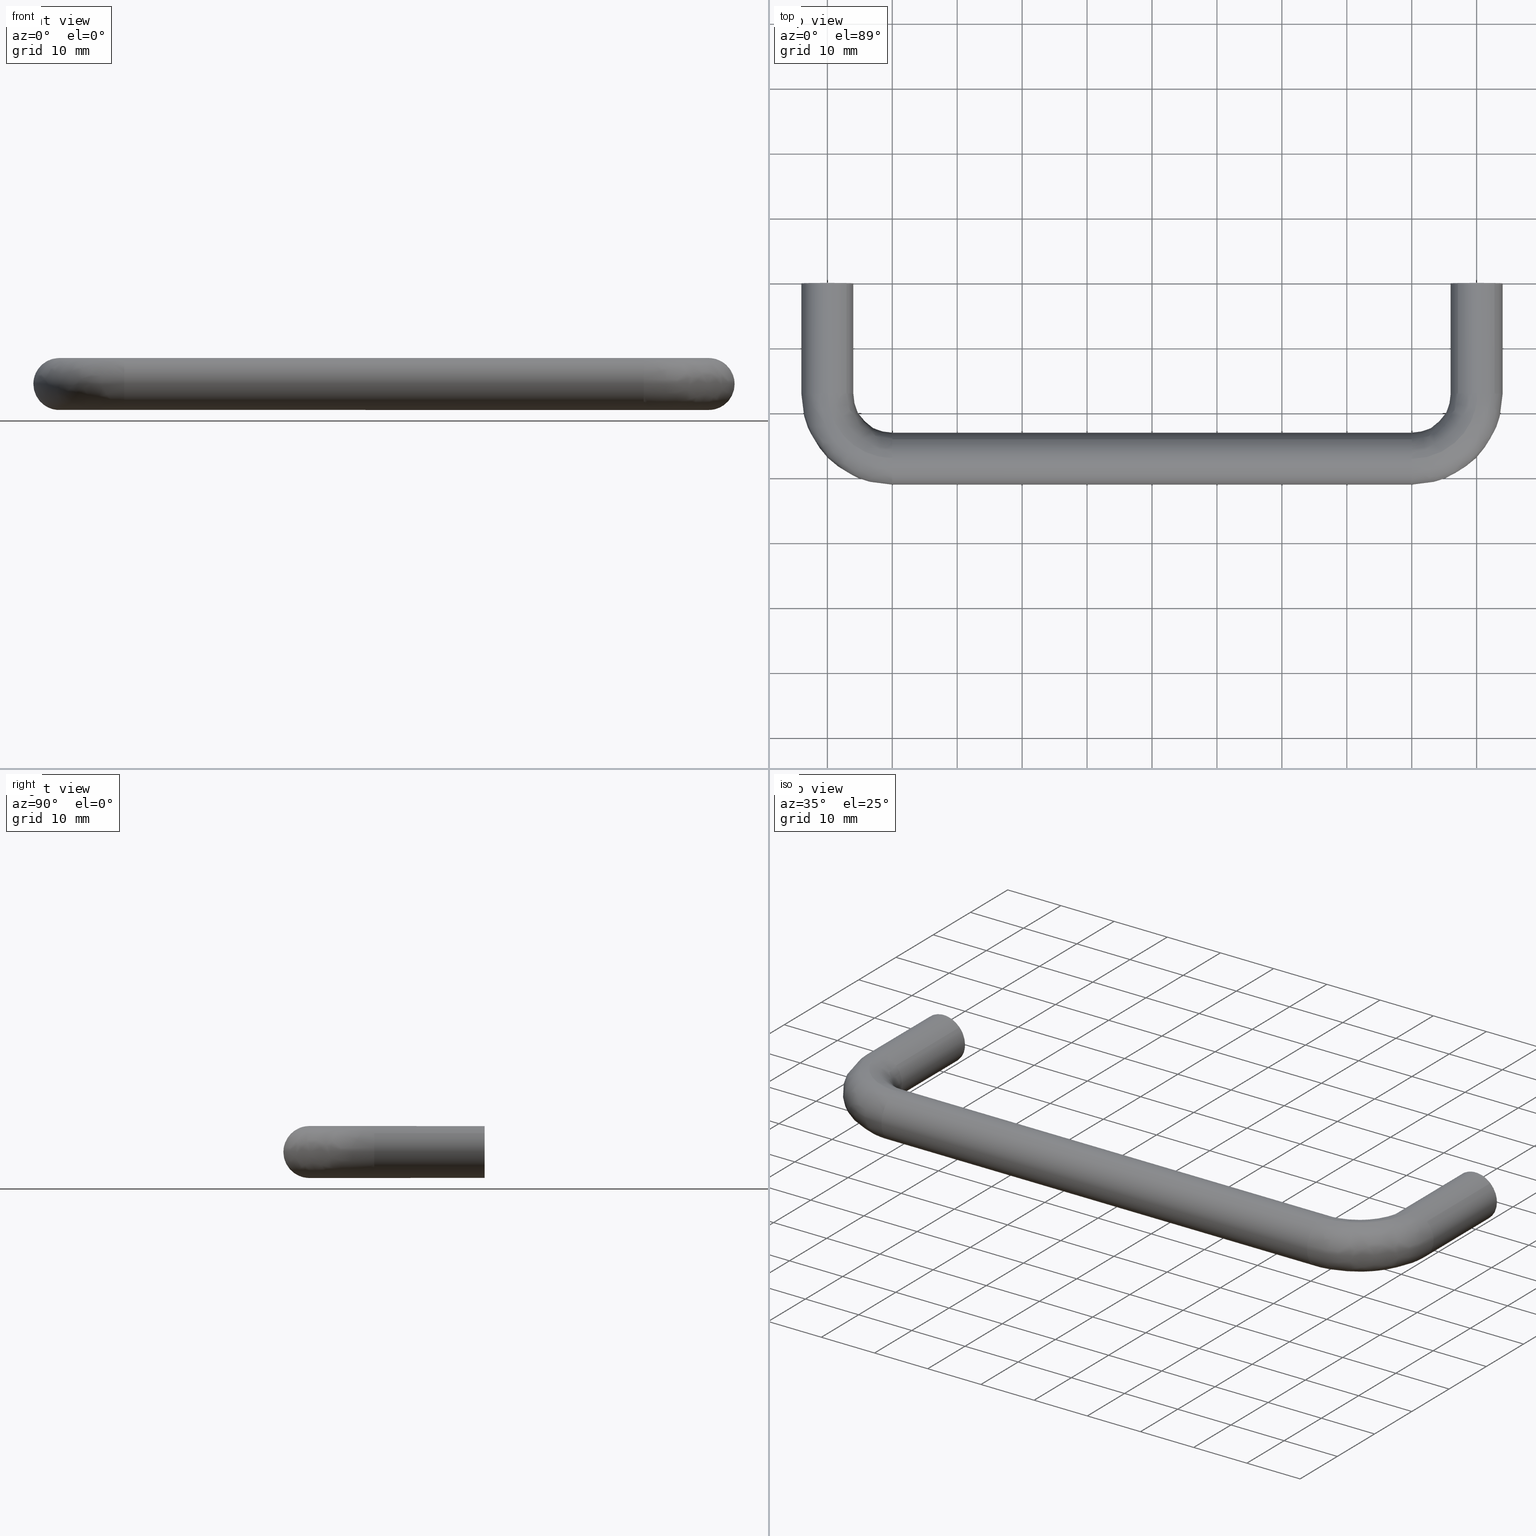
[diagram: canonical four-view strip — front | top / right | iso, engineering-drawing reading convention]
A machine part, canonical four-view strip (front | top / right | iso — engineering-drawing reading convention). The complete STEP part file that produces these views, byte-faithful:
ISO-10303-21;
HEADER;
/****************************************************************
 * Generated by software with PDE/Lib inside                    *
 * PDElib Version 4.4.1-0003, patched  Thursday August 19 11:58 *
 * International Technegroup Inc. (www.iti-oh.com)              *
 ****************************************************************/
FILE_DESCRIPTION((''),'2;1');
FILE_NAME('','2005-10-07T11:56:20',(''),(''),'','CADfix','');
FILE_SCHEMA(('AUTOMOTIVE_DESIGN'));
ENDSEC;
DATA;
#5=APPLICATION_CONTEXT('automotive design');
#6=APPLICATION_PROTOCOL_DEFINITION('Draft International Standard','automotive_design',1998,#5);
#7=PRODUCT_CONTEXT('None',#5,'mechanical');
#8=PRODUCT('pull','','None',(#7));
#9=PRODUCT_RELATED_PRODUCT_CATEGORY('part','description',(#8));
#10=PRODUCT_DEFINITION_FORMATION('None','None',#8);
#11=PRODUCT_DEFINITION_CONTEXT('part definition',#5,'design');
#12=PRODUCT_DEFINITION('None','None',#10,#11);
#18=(NAMED_UNIT(*)PLANE_ANGLE_UNIT()SI_UNIT($,.RADIAN.));
#19=DIMENSIONAL_EXPONENTS(0.0,0.0,0.0,0.0,0.0,0.0,0.0);
#20=PLANE_ANGLE_MEASURE_WITH_UNIT(PLANE_ANGLE_MEASURE(0.017453292500000),#18);
#24=(CONVERSION_BASED_UNIT('DEGREE',#20)NAMED_UNIT(#19)PLANE_ANGLE_UNIT());
#28=(NAMED_UNIT(*)SI_UNIT($,.STERADIAN.)SOLID_ANGLE_UNIT());
#32=(LENGTH_UNIT()NAMED_UNIT(*)SI_UNIT(.MILLI.,.METRE.));
#34=UNCERTAINTY_MEASURE_WITH_UNIT(LENGTH_MEASURE(0.001000000000000),#32,'DISTANCE_ACCURACY_VALUE','');
#36=(GEOMETRIC_REPRESENTATION_CONTEXT(3)GLOBAL_UNCERTAINTY_ASSIGNED_CONTEXT((#34))GLOBAL_UNIT_ASSIGNED_CONTEXT((#24,#28,#32))REPRESENTATION_CONTEXT('None','None'));
#37=AXIS2_PLACEMENT_3D('',#38,#39,#40);
#38=CARTESIAN_POINT('',(0.0,0.0,0.0));
#39=DIRECTION('',(0.0,0.0,1.0));
#40=DIRECTION('',(1.0,0.0,0.0));
#41=ADVANCED_BREP_SHAPE_REPRESENTATION('',(#37,#1349),#36);
#42=PRODUCT_DEFINITION_SHAPE('','',#12);
#43=SHAPE_DEFINITION_REPRESENTATION(#42,#41);
#44=CARTESIAN_POINT('',(-2.492293334332819,-13.324999999999999,0.196147739319614));
#45=CARTESIAN_POINT('',(-2.296145595013206,-13.325000000000001,2.688441073652433));
#46=CARTESIAN_POINT('',(0.196147739319614,-13.324999999999999,2.492293334332819));
#47=CARTESIAN_POINT('',(2.688441073652433,-13.325000000000001,2.296145595013206));
#48=CARTESIAN_POINT('',(2.492293334332819,-13.324999999999999,-0.196147739319614));
#49=CARTESIAN_POINT('',(-2.492293334332819,0.333124999999999,0.196147739319614));
#50=CARTESIAN_POINT('',(-2.296145595013206,0.333124999999999,2.688441073652433));
#51=CARTESIAN_POINT('',(0.196147739319614,0.333124999999999,2.492293334332819));
#52=CARTESIAN_POINT('',(2.688441073652433,0.333124999999999,2.296145595013206));
#53=CARTESIAN_POINT('',(2.492293334332819,0.333124999999999,-0.196147739319614));
#61=(BOUNDED_SURFACE()B_SPLINE_SURFACE(2,1,((#44,#49),(#45,#50),(#46,#51),(#47,#52),(#48,#53)),.UNSPECIFIED.,.F.,.F.,.U.)B_SPLINE_SURFACE_WITH_KNOTS((3,2,3),(2,2),(0.0,4.142135623730949,8.284271247461899),(0.0,13.658125000000000),.UNSPECIFIED.)GEOMETRIC_REPRESENTATION_ITEM()RATIONAL_B_SPLINE_SURFACE(((1.0,1.0),(0.707106781186548,0.707106781186548),(1.0,1.0),(0.707106781186548,0.707106781186548),(1.0,1.0)))REPRESENTATION_ITEM('')SURFACE());
#62=CARTESIAN_POINT('',(0.0,-13.0,2.500000000000000));
#63=VERTEX_POINT('',#62);
#64=CARTESIAN_POINT('',(-2.492293334302274,-13.0,0.196147739707723));
#65=VERTEX_POINT('',#64);
#66=CARTESIAN_POINT('',(0.0,-13.0,2.500000000000000));
#67=CARTESIAN_POINT('',(-2.310976228423543,-13.0,2.500000000000000));
#68=CARTESIAN_POINT('',(-2.492293334302275,-12.999999999999996,0.196147739707723));
#76=(BOUNDED_CURVE()B_SPLINE_CURVE(2,(#66,#67,#68),.UNSPECIFIED.,.F.,.U.)B_SPLINE_CURVE_WITH_KNOTS((3,3),(0.0,0.236331300579377),.UNSPECIFIED.)CURVE()GEOMETRIC_REPRESENTATION_ITEM()RATIONAL_B_SPLINE_CURVE((1.0,0.723120658667747,0.969723356060395))REPRESENTATION_ITEM(''));
#77=EDGE_CURVE('',#63,#65,#76,.T.);
#78=ORIENTED_EDGE('',*,*,#77,.T.);
#79=CARTESIAN_POINT('',(-2.492293334302274,8.326673E-017,0.196147739707724));
#80=VERTEX_POINT('',#79);
#81=CARTESIAN_POINT('',(-2.492293334302274,-13.0,0.196147739707723));
#82=CARTESIAN_POINT('',(-2.492293334302274,8.326673E-017,0.196147739707724));
#83=QUASI_UNIFORM_CURVE('',1,(#81,#82),.UNSPECIFIED.,.F.,.U.);
#84=EDGE_CURVE('',#65,#80,#83,.T.);
#85=ORIENTED_EDGE('',*,*,#84,.T.);
#86=CARTESIAN_POINT('',(0.0,0.0,2.500000000000000));
#87=VERTEX_POINT('',#86);
#88=CARTESIAN_POINT('',(0.0,0.0,2.500000000000000));
#89=CARTESIAN_POINT('',(-2.310976228423543,0.0,2.500000000000000));
#90=CARTESIAN_POINT('',(-2.492293334302274,8.326673E-017,0.196147739707724));
#98=(BOUNDED_CURVE()B_SPLINE_CURVE(2,(#88,#89,#90),.UNSPECIFIED.,.F.,.U.)B_SPLINE_CURVE_WITH_KNOTS((3,3),(0.0,0.236331300579377),.UNSPECIFIED.)CURVE()GEOMETRIC_REPRESENTATION_ITEM()RATIONAL_B_SPLINE_CURVE((1.0,0.723120658667747,0.969723356060395))REPRESENTATION_ITEM(''));
#99=EDGE_CURVE('',#87,#80,#98,.T.);
#100=ORIENTED_EDGE('',*,*,#99,.F.);
#101=CARTESIAN_POINT('',(2.492293334302274,8.326673E-017,-0.196147739707723));
#102=VERTEX_POINT('',#101);
#103=CARTESIAN_POINT('',(2.492293334302275,8.326673E-017,-0.196147739707723));
#104=CARTESIAN_POINT('',(2.500000000000000,0.0,-0.098225267909086));
#105=CARTESIAN_POINT('',(2.500000000000000,0.0,0.0));
#106=CARTESIAN_POINT('',(2.500000000000000,0.0,2.500000000000000));
#107=CARTESIAN_POINT('',(0.0,0.0,2.500000000000000));
#115=(BOUNDED_CURVE()B_SPLINE_CURVE(2,(#103,#104,#105,#106,#107),.UNSPECIFIED.,.F.,.U.)B_SPLINE_CURVE_WITH_KNOTS((3,2,3),(0.736331300579377,0.750000000000000,1.0),.UNSPECIFIED.)CURVE()GEOMETRIC_REPRESENTATION_ITEM()RATIONAL_B_SPLINE_CURVE((0.969723356060395,0.983986122518801,1.0,0.707106781186548,1.0))REPRESENTATION_ITEM(''));
#116=EDGE_CURVE('',#102,#87,#115,.T.);
#117=ORIENTED_EDGE('',*,*,#116,.F.);
#118=CARTESIAN_POINT('',(2.492293334302274,-13.0,-0.196147739707723));
#119=VERTEX_POINT('',#118);
#120=CARTESIAN_POINT('',(2.492293334302274,-13.0,-0.196147739707723));
#121=CARTESIAN_POINT('',(2.492293334302274,8.326673E-017,-0.196147739707723));
#122=QUASI_UNIFORM_CURVE('',1,(#120,#121),.UNSPECIFIED.,.F.,.U.);
#123=EDGE_CURVE('',#119,#102,#122,.T.);
#124=ORIENTED_EDGE('',*,*,#123,.F.);
#125=CARTESIAN_POINT('',(2.492293334302275,-13.000000000000005,-0.196147739707723));
#126=CARTESIAN_POINT('',(2.500000000000000,-13.000000000000002,-0.098225267909086));
#127=CARTESIAN_POINT('',(2.500000000000000,-13.0,0.0));
#128=CARTESIAN_POINT('',(2.500000000000000,-13.000000000000002,2.500000000000000));
#129=CARTESIAN_POINT('',(0.0,-13.0,2.500000000000000));
#137=(BOUNDED_CURVE()B_SPLINE_CURVE(2,(#125,#126,#127,#128,#129),.UNSPECIFIED.,.F.,.U.)B_SPLINE_CURVE_WITH_KNOTS((3,2,3),(0.736331300579377,0.750000000000000,1.0),.UNSPECIFIED.)CURVE()GEOMETRIC_REPRESENTATION_ITEM()RATIONAL_B_SPLINE_CURVE((0.969723356060395,0.983986122518801,1.0,0.707106781186548,1.0))REPRESENTATION_ITEM(''));
#138=EDGE_CURVE('',#119,#63,#137,.T.);
#139=ORIENTED_EDGE('',*,*,#138,.T.);
#140=EDGE_LOOP('',(#78,#85,#100,#117,#124,#139));
#141=FACE_OUTER_BOUND('',#140,.T.);
#142=ADVANCED_FACE('',(#141),#61,.F.);
#143=CARTESIAN_POINT('',(2.492293334332819,-13.324999999999999,-0.196147739319614));
#144=CARTESIAN_POINT('',(2.296145595013206,-13.325000000000001,-2.688441073652433));
#145=CARTESIAN_POINT('',(-0.196147739319614,-13.324999999999999,-2.492293334332819));
#146=CARTESIAN_POINT('',(-2.688441073652433,-13.325000000000001,-2.296145595013206));
#147=CARTESIAN_POINT('',(-2.492293334332819,-13.324999999999999,0.196147739319614));
#148=CARTESIAN_POINT('',(2.492293334332819,0.333124999999999,-0.196147739319614));
#149=CARTESIAN_POINT('',(2.296145595013206,0.333124999999999,-2.688441073652433));
#150=CARTESIAN_POINT('',(-0.196147739319614,0.333124999999999,-2.492293334332819));
#151=CARTESIAN_POINT('',(-2.688441073652433,0.333124999999999,-2.296145595013206));
#152=CARTESIAN_POINT('',(-2.492293334332819,0.333124999999999,0.196147739319614));
#160=(BOUNDED_SURFACE()B_SPLINE_SURFACE(2,1,((#143,#148),(#144,#149),(#145,#150),(#146,#151),(#147,#152)),.UNSPECIFIED.,.F.,.F.,.U.)B_SPLINE_SURFACE_WITH_KNOTS((3,2,3),(2,2),(0.0,4.142135623730949,8.284271247461899),(0.0,13.658125000000000),.UNSPECIFIED.)GEOMETRIC_REPRESENTATION_ITEM()RATIONAL_B_SPLINE_SURFACE(((1.0,1.0),(0.707106781186548,0.707106781186548),(1.0,1.0),(0.707106781186548,0.707106781186548),(1.0,1.0)))REPRESENTATION_ITEM('')SURFACE());
#161=CARTESIAN_POINT('',(0.0,-13.0,-2.500000000000000));
#162=VERTEX_POINT('',#161);
#163=CARTESIAN_POINT('',(-2.492293334302275,-12.999999999999996,0.196147739707723));
#164=CARTESIAN_POINT('',(-2.500000000000000,-13.000000000000002,0.098225267909086));
#165=CARTESIAN_POINT('',(-2.500000000000000,-13.0,0.0));
#166=CARTESIAN_POINT('',(-2.500000000000000,-13.000000000000002,-2.500000000000000));
#167=CARTESIAN_POINT('',(0.0,-13.0,-2.500000000000000));
#175=(BOUNDED_CURVE()B_SPLINE_CURVE(2,(#163,#164,#165,#166,#167),.UNSPECIFIED.,.F.,.U.)B_SPLINE_CURVE_WITH_KNOTS((3,2,3),(0.236331300579377,0.250000000000000,0.500000000000000),.UNSPECIFIED.)CURVE()GEOMETRIC_REPRESENTATION_ITEM()RATIONAL_B_SPLINE_CURVE((0.969723356060395,0.983986122518801,1.0,0.707106781186548,1.0))REPRESENTATION_ITEM(''));
#176=EDGE_CURVE('',#65,#162,#175,.T.);
#177=ORIENTED_EDGE('',*,*,#176,.T.);
#178=CARTESIAN_POINT('',(0.0,-13.0,-2.500000000000000));
#179=CARTESIAN_POINT('',(2.310976228423551,-13.000000000000002,-2.500000000000000));
#180=CARTESIAN_POINT('',(2.492293334302275,-12.999999999999998,-0.196147739707723));
#188=(BOUNDED_CURVE()B_SPLINE_CURVE(2,(#178,#179,#180),.UNSPECIFIED.,.F.,.U.)B_SPLINE_CURVE_WITH_KNOTS((3,3),(0.500000000000000,0.736331300579378),.UNSPECIFIED.)CURVE()GEOMETRIC_REPRESENTATION_ITEM()RATIONAL_B_SPLINE_CURVE((1.0,0.723120658667746,0.969723356060396))REPRESENTATION_ITEM(''));
#189=EDGE_CURVE('',#162,#119,#188,.T.);
#190=ORIENTED_EDGE('',*,*,#189,.T.);
#191=ORIENTED_EDGE('',*,*,#123,.T.);
#192=CARTESIAN_POINT('',(0.0,0.0,-2.500000000000000));
#193=VERTEX_POINT('',#192);
#194=CARTESIAN_POINT('',(0.0,0.0,-2.500000000000000));
#195=CARTESIAN_POINT('',(2.310976228423551,0.0,-2.500000000000000));
#196=CARTESIAN_POINT('',(2.492293334302275,8.326673E-017,-0.196147739707723));
#204=(BOUNDED_CURVE()B_SPLINE_CURVE(2,(#194,#195,#196),.UNSPECIFIED.,.F.,.U.)B_SPLINE_CURVE_WITH_KNOTS((3,3),(0.500000000000000,0.736331300579378),.UNSPECIFIED.)CURVE()GEOMETRIC_REPRESENTATION_ITEM()RATIONAL_B_SPLINE_CURVE((1.0,0.723120658667746,0.969723356060396))REPRESENTATION_ITEM(''));
#205=EDGE_CURVE('',#193,#102,#204,.T.);
#206=ORIENTED_EDGE('',*,*,#205,.F.);
#207=CARTESIAN_POINT('',(-2.492293334302274,8.326673E-017,0.196147739707724));
#208=CARTESIAN_POINT('',(-2.500000000000000,0.0,0.098225267909086));
#209=CARTESIAN_POINT('',(-2.500000000000000,0.0,0.0));
#210=CARTESIAN_POINT('',(-2.500000000000000,0.0,-2.500000000000000));
#211=CARTESIAN_POINT('',(0.0,0.0,-2.500000000000000));
#219=(BOUNDED_CURVE()B_SPLINE_CURVE(2,(#207,#208,#209,#210,#211),.UNSPECIFIED.,.F.,.U.)B_SPLINE_CURVE_WITH_KNOTS((3,2,3),(0.236331300579377,0.250000000000000,0.500000000000000),.UNSPECIFIED.)CURVE()GEOMETRIC_REPRESENTATION_ITEM()RATIONAL_B_SPLINE_CURVE((0.969723356060395,0.983986122518801,1.0,0.707106781186548,1.0))REPRESENTATION_ITEM(''));
#220=EDGE_CURVE('',#80,#193,#219,.T.);
#221=ORIENTED_EDGE('',*,*,#220,.F.);
#222=ORIENTED_EDGE('',*,*,#84,.F.);
#223=EDGE_LOOP('',(#177,#190,#191,#206,#221,#222));
#224=FACE_OUTER_BOUND('',#223,.T.);
#225=ADVANCED_FACE('',(#224),#160,.F.);
#226=CARTESIAN_POINT('',(97.507706665667186,-13.324999999999999,0.196147739319614));
#227=CARTESIAN_POINT('',(97.703854404986799,-13.325000000000001,2.688441073652433));
#228=CARTESIAN_POINT('',(100.196147739319600,-13.324999999999999,2.492293334332819));
#229=CARTESIAN_POINT('',(102.688441073652430,-13.325000000000001,2.296145595013206));
#230=CARTESIAN_POINT('',(102.492293334332800,-13.324999999999999,-0.196147739319614));
#231=CARTESIAN_POINT('',(97.507706665667186,0.333124999999999,0.196147739319614));
#232=CARTESIAN_POINT('',(97.703854404986799,0.333124999999999,2.688441073652433));
#233=CARTESIAN_POINT('',(100.196147739319600,0.333124999999999,2.492293334332819));
#234=CARTESIAN_POINT('',(102.688441073652430,0.333124999999999,2.296145595013206));
#235=CARTESIAN_POINT('',(102.492293334332800,0.333124999999999,-0.196147739319614));
#243=(BOUNDED_SURFACE()B_SPLINE_SURFACE(2,1,((#226,#231),(#227,#232),(#228,#233),(#229,#234),(#230,#235)),.UNSPECIFIED.,.F.,.F.,.U.)B_SPLINE_SURFACE_WITH_KNOTS((3,2,3),(2,2),(0.0,4.142135623730946,8.284271247461891),(0.0,13.658125000000000),.UNSPECIFIED.)GEOMETRIC_REPRESENTATION_ITEM()RATIONAL_B_SPLINE_SURFACE(((1.0,1.0),(0.707106781186548,0.707106781186548),(1.0,1.0),(0.707106781186548,0.707106781186548),(1.0,1.0)))REPRESENTATION_ITEM('')SURFACE());
#244=CARTESIAN_POINT('',(100.0,-13.0,2.500000000000000));
#245=VERTEX_POINT('',#244);
#246=CARTESIAN_POINT('',(97.507706665697725,-13.0,0.196147739707724));
#247=VERTEX_POINT('',#246);
#248=CARTESIAN_POINT('',(100.0,-13.0,2.500000000000000));
#249=CARTESIAN_POINT('',(97.689023771576458,-13.000000000000002,2.500000000000001));
#250=CARTESIAN_POINT('',(97.507706665697725,-12.999999999999996,0.196147739707724));
#258=(BOUNDED_CURVE()B_SPLINE_CURVE(2,(#248,#249,#250),.UNSPECIFIED.,.F.,.U.)B_SPLINE_CURVE_WITH_KNOTS((3,3),(0.0,0.236331300579377),.UNSPECIFIED.)CURVE()GEOMETRIC_REPRESENTATION_ITEM()RATIONAL_B_SPLINE_CURVE((1.0,0.723120658667747,0.969723356060395))REPRESENTATION_ITEM(''));
#259=EDGE_CURVE('',#245,#247,#258,.T.);
#260=ORIENTED_EDGE('',*,*,#259,.T.);
#261=CARTESIAN_POINT('',(97.507706665697725,8.326673E-017,0.196147739707724));
#262=VERTEX_POINT('',#261);
#263=CARTESIAN_POINT('',(97.507706665697725,-13.0,0.196147739707724));
#264=CARTESIAN_POINT('',(97.507706665697725,8.326673E-017,0.196147739707724));
#265=QUASI_UNIFORM_CURVE('',1,(#263,#264),.UNSPECIFIED.,.F.,.U.);
#266=EDGE_CURVE('',#247,#262,#265,.T.);
#267=ORIENTED_EDGE('',*,*,#266,.T.);
#268=CARTESIAN_POINT('',(100.0,0.0,2.500000000000000));
#269=VERTEX_POINT('',#268);
#270=CARTESIAN_POINT('',(100.0,0.0,2.500000000000000));
#271=CARTESIAN_POINT('',(97.689023771576444,0.0,2.499999999999999));
#272=CARTESIAN_POINT('',(97.507706665697725,8.326673E-017,0.196147739707724));
#280=(BOUNDED_CURVE()B_SPLINE_CURVE(2,(#270,#271,#272),.UNSPECIFIED.,.F.,.U.)B_SPLINE_CURVE_WITH_KNOTS((3,3),(0.0,0.236331300579377),.UNSPECIFIED.)CURVE()GEOMETRIC_REPRESENTATION_ITEM()RATIONAL_B_SPLINE_CURVE((1.0,0.723120658667747,0.969723356060395))REPRESENTATION_ITEM(''));
#281=EDGE_CURVE('',#269,#262,#280,.T.);
#282=ORIENTED_EDGE('',*,*,#281,.F.);
#283=CARTESIAN_POINT('',(102.492293334302300,8.326673E-017,-0.196147739707724));
#284=VERTEX_POINT('',#283);
#285=CARTESIAN_POINT('',(102.492293334302270,8.326673E-017,-0.196147739707724));
#286=CARTESIAN_POINT('',(102.500000000000060,0.0,-0.098225267909086));
#287=CARTESIAN_POINT('',(102.500000000000000,0.0,0.0));
#288=CARTESIAN_POINT('',(102.500000000000010,0.0,2.500000000000000));
#289=CARTESIAN_POINT('',(100.0,0.0,2.500000000000000));
#297=(BOUNDED_CURVE()B_SPLINE_CURVE(2,(#285,#286,#287,#288,#289),.UNSPECIFIED.,.F.,.U.)B_SPLINE_CURVE_WITH_KNOTS((3,2,3),(0.736331300579377,0.750000000000000,1.0),.UNSPECIFIED.)CURVE()GEOMETRIC_REPRESENTATION_ITEM()RATIONAL_B_SPLINE_CURVE((0.969723356060395,0.983986122518800,1.0,0.707106781186548,1.0))REPRESENTATION_ITEM(''));
#298=EDGE_CURVE('',#284,#269,#297,.T.);
#299=ORIENTED_EDGE('',*,*,#298,.F.);
#300=CARTESIAN_POINT('',(102.492293334302300,-13.0,-0.196147739707725));
#301=VERTEX_POINT('',#300);
#302=CARTESIAN_POINT('',(102.492293334302300,-13.0,-0.196147739707725));
#303=CARTESIAN_POINT('',(102.492293334302300,8.326673E-017,-0.196147739707724));
#304=QUASI_UNIFORM_CURVE('',1,(#302,#303),.UNSPECIFIED.,.F.,.U.);
#305=EDGE_CURVE('',#301,#284,#304,.T.);
#306=ORIENTED_EDGE('',*,*,#305,.F.);
#307=CARTESIAN_POINT('',(102.492293334302270,-13.000000000000004,-0.196147739707725));
#308=CARTESIAN_POINT('',(102.500000000000070,-13.000000000000005,-0.098225267909087));
#309=CARTESIAN_POINT('',(102.500000000000000,-13.0,0.0));
#310=CARTESIAN_POINT('',(102.500000000000010,-13.000000000000002,2.500000000000000));
#311=CARTESIAN_POINT('',(100.0,-13.0,2.500000000000000));
#319=(BOUNDED_CURVE()B_SPLINE_CURVE(2,(#307,#308,#309,#310,#311),.UNSPECIFIED.,.F.,.U.)B_SPLINE_CURVE_WITH_KNOTS((3,2,3),(0.736331300579377,0.750000000000000,1.0),.UNSPECIFIED.)CURVE()GEOMETRIC_REPRESENTATION_ITEM()RATIONAL_B_SPLINE_CURVE((0.969723356060394,0.983986122518800,1.0,0.707106781186548,1.0))REPRESENTATION_ITEM(''));
#320=EDGE_CURVE('',#301,#245,#319,.T.);
#321=ORIENTED_EDGE('',*,*,#320,.T.);
#322=EDGE_LOOP('',(#260,#267,#282,#299,#306,#321));
#323=FACE_OUTER_BOUND('',#322,.T.);
#324=ADVANCED_FACE('',(#323),#243,.F.);
#325=CARTESIAN_POINT('',(102.492293334332800,-13.324999999999999,-0.196147739319614));
#326=CARTESIAN_POINT('',(102.296145595013190,-13.325000000000001,-2.688441073652433));
#327=CARTESIAN_POINT('',(99.803852260680387,-13.324999999999999,-2.492293334332819));
#328=CARTESIAN_POINT('',(97.311558926347573,-13.325000000000001,-2.296145595013206));
#329=CARTESIAN_POINT('',(97.507706665667186,-13.324999999999999,0.196147739319614));
#330=CARTESIAN_POINT('',(102.492293334332800,0.333124999999999,-0.196147739319614));
#331=CARTESIAN_POINT('',(102.296145595013190,0.333124999999999,-2.688441073652433));
#332=CARTESIAN_POINT('',(99.803852260680387,0.333124999999999,-2.492293334332819));
#333=CARTESIAN_POINT('',(97.311558926347573,0.333124999999999,-2.296145595013206));
#334=CARTESIAN_POINT('',(97.507706665667186,0.333124999999999,0.196147739319614));
#342=(BOUNDED_SURFACE()B_SPLINE_SURFACE(2,1,((#325,#330),(#326,#331),(#327,#332),(#328,#333),(#329,#334)),.UNSPECIFIED.,.F.,.F.,.U.)B_SPLINE_SURFACE_WITH_KNOTS((3,2,3),(2,2),(0.0,4.142135623730946,8.284271247461891),(0.0,13.658125000000000),.UNSPECIFIED.)GEOMETRIC_REPRESENTATION_ITEM()RATIONAL_B_SPLINE_SURFACE(((1.0,1.0),(0.707106781186548,0.707106781186548),(1.0,1.0),(0.707106781186548,0.707106781186548),(1.0,1.0)))REPRESENTATION_ITEM('')SURFACE());
#343=CARTESIAN_POINT('',(100.0,-13.0,-2.500000000000000));
#344=VERTEX_POINT('',#343);
#345=CARTESIAN_POINT('',(97.507706665697725,-12.999999999999998,0.196147739707724));
#346=CARTESIAN_POINT('',(97.500000000000000,-13.000000000000004,0.098225267909086));
#347=CARTESIAN_POINT('',(97.500000000000000,-13.0,0.0));
#348=CARTESIAN_POINT('',(97.500000000000000,-13.000000000000002,-2.500000000000000));
#349=CARTESIAN_POINT('',(100.0,-13.0,-2.500000000000000));
#357=(BOUNDED_CURVE()B_SPLINE_CURVE(2,(#345,#346,#347,#348,#349),.UNSPECIFIED.,.F.,.U.)B_SPLINE_CURVE_WITH_KNOTS((3,2,3),(0.236331300579377,0.250000000000000,0.500000000000000),.UNSPECIFIED.)CURVE()GEOMETRIC_REPRESENTATION_ITEM()RATIONAL_B_SPLINE_CURVE((0.969723356060395,0.983986122518801,1.0,0.707106781186548,1.0))REPRESENTATION_ITEM(''));
#358=EDGE_CURVE('',#247,#344,#357,.T.);
#359=ORIENTED_EDGE('',*,*,#358,.T.);
#360=CARTESIAN_POINT('',(100.0,-13.0,-2.500000000000000));
#361=CARTESIAN_POINT('',(102.310976228423580,-13.000000000000002,-2.500000000000000));
#362=CARTESIAN_POINT('',(102.492293334302270,-12.999999999999998,-0.196147739707725));
#370=(BOUNDED_CURVE()B_SPLINE_CURVE(2,(#360,#361,#362),.UNSPECIFIED.,.F.,.U.)B_SPLINE_CURVE_WITH_KNOTS((3,3),(0.500000000000000,0.736331300579378),.UNSPECIFIED.)CURVE()GEOMETRIC_REPRESENTATION_ITEM()RATIONAL_B_SPLINE_CURVE((1.0,0.723120658667746,0.969723356060396))REPRESENTATION_ITEM(''));
#371=EDGE_CURVE('',#344,#301,#370,.T.);
#372=ORIENTED_EDGE('',*,*,#371,.T.);
#373=ORIENTED_EDGE('',*,*,#305,.T.);
#374=CARTESIAN_POINT('',(100.0,0.0,-2.500000000000000));
#375=VERTEX_POINT('',#374);
#376=CARTESIAN_POINT('',(100.0,0.0,-2.500000000000000));
#377=CARTESIAN_POINT('',(102.310976228423580,0.0,-2.500000000000000));
#378=CARTESIAN_POINT('',(102.492293334302270,8.326673E-017,-0.196147739707724));
#386=(BOUNDED_CURVE()B_SPLINE_CURVE(2,(#376,#377,#378),.UNSPECIFIED.,.F.,.U.)B_SPLINE_CURVE_WITH_KNOTS((3,3),(0.500000000000000,0.736331300579378),.UNSPECIFIED.)CURVE()GEOMETRIC_REPRESENTATION_ITEM()RATIONAL_B_SPLINE_CURVE((1.0,0.723120658667746,0.969723356060396))REPRESENTATION_ITEM(''));
#387=EDGE_CURVE('',#375,#284,#386,.T.);
#388=ORIENTED_EDGE('',*,*,#387,.F.);
#389=CARTESIAN_POINT('',(97.507706665697739,8.326673E-017,0.196147739707724));
#390=CARTESIAN_POINT('',(97.500000000000014,0.0,0.098225267909086));
#391=CARTESIAN_POINT('',(97.500000000000000,0.0,0.0));
#392=CARTESIAN_POINT('',(97.500000000000000,0.0,-2.500000000000000));
#393=CARTESIAN_POINT('',(100.0,0.0,-2.500000000000000));
#401=(BOUNDED_CURVE()B_SPLINE_CURVE(2,(#389,#390,#391,#392,#393),.UNSPECIFIED.,.F.,.U.)B_SPLINE_CURVE_WITH_KNOTS((3,2,3),(0.236331300579377,0.250000000000000,0.500000000000000),.UNSPECIFIED.)CURVE()GEOMETRIC_REPRESENTATION_ITEM()RATIONAL_B_SPLINE_CURVE((0.969723356060395,0.983986122518800,1.0,0.707106781186548,1.0))REPRESENTATION_ITEM(''));
#402=EDGE_CURVE('',#262,#375,#401,.T.);
#403=ORIENTED_EDGE('',*,*,#402,.F.);
#404=ORIENTED_EDGE('',*,*,#266,.F.);
#405=EDGE_LOOP('',(#359,#372,#373,#388,#403,#404));
#406=FACE_OUTER_BOUND('',#405,.T.);
#407=ADVANCED_FACE('',(#406),#342,.F.);
#408=CARTESIAN_POINT('',(102.753418302775000,-17.425000001025509,2.901497484049150));
#409=CARTESIAN_POINT('',(105.654915786824180,-17.425000001025499,0.148079181274134));
#410=CARTESIAN_POINT('',(102.901497484049100,-17.425000001025509,-2.753418302775015));
#411=CARTESIAN_POINT('',(100.148079181274110,-17.425000001025499,-5.654915786824165));
#412=CARTESIAN_POINT('',(97.246581697224983,-17.425000001025509,-2.901497484049150));
#413=CARTESIAN_POINT('',(94.345084213175838,-17.425000001025499,-0.148079181274134));
#414=CARTESIAN_POINT('',(97.098502515950855,-17.425000001025509,2.753418302775015));
#415=CARTESIAN_POINT('',(102.753418302775000,0.435625000025652,2.901497484049150));
#416=CARTESIAN_POINT('',(105.654915786824180,0.435625000025652,0.148079181274134));
#417=CARTESIAN_POINT('',(102.901497484049100,0.435625000025652,-2.753418302775015));
#418=CARTESIAN_POINT('',(100.148079181274110,0.435625000025652,-5.654915786824165));
#419=CARTESIAN_POINT('',(97.246581697224983,0.435625000025652,-2.901497484049150));
#420=CARTESIAN_POINT('',(94.345084213175838,0.435625000025653,-0.148079181274134));
#421=CARTESIAN_POINT('',(97.098502515950855,0.435625000025653,2.753418302775015));
#429=(BOUNDED_SURFACE()B_SPLINE_SURFACE(2,1,((#408,#415),(#409,#416),(#410,#417),(#411,#418),(#412,#419),(#413,#420),(#414,#421)),.UNSPECIFIED.,.F.,.F.,.U.)B_SPLINE_SURFACE_WITH_KNOTS((3,2,2,3),(2,2),(0.0,6.627416997969532,13.254833995939061,19.882250993908599),(0.0,17.860625001051162),.UNSPECIFIED.)GEOMETRIC_REPRESENTATION_ITEM()RATIONAL_B_SPLINE_SURFACE(((1.0,1.0),(0.707106781186548,0.707106781186548),(1.0,1.0),(0.707106781186548,0.707106781186548),(1.0,1.0),(0.707106781186548,0.707106781186548),(1.0,1.0)))REPRESENTATION_ITEM('')SURFACE());
#430=CARTESIAN_POINT('',(102.753417907465210,3.966272E-014,2.901497859184077));
#431=VERTEX_POINT('',#430);
#432=CARTESIAN_POINT('',(104.0,1.387779E-014,0.0));
#433=VERTEX_POINT('',#432);
#434=CARTESIAN_POINT('',(102.753417907465190,3.966272E-014,2.901497859184078));
#435=CARTESIAN_POINT('',(104.000000000000030,1.387779E-014,1.718536269434938));
#436=CARTESIAN_POINT('',(104.0,1.387779E-014,0.0));
#444=(BOUNDED_CURVE()B_SPLINE_CURVE(2,(#434,#435,#436),.UNSPECIFIED.,.F.,.U.)B_SPLINE_CURVE_WITH_KNOTS((3,3),(0.871049485536956,1.0),.UNSPECIFIED.)CURVE()GEOMETRIC_REPRESENTATION_ITEM()RATIONAL_B_SPLINE_CURVE((0.853699664414640,0.848925075005074,1.0))REPRESENTATION_ITEM(''));
#445=EDGE_CURVE('',#431,#433,#444,.T.);
#446=ORIENTED_EDGE('',*,*,#445,.F.);
#447=CARTESIAN_POINT('',(102.753417296883400,-17.000000000319861,2.901498437969774));
#448=VERTEX_POINT('',#447);
#449=CARTESIAN_POINT('',(102.753417296883400,-17.000000000319861,2.901498437969774));
#450=CARTESIAN_POINT('',(102.753417907465210,3.966272E-014,2.901497859184077));
#451=QUASI_UNIFORM_CURVE('',1,(#449,#450),.UNSPECIFIED.,.F.,.U.);
#452=EDGE_CURVE('',#448,#431,#451,.T.);
#453=ORIENTED_EDGE('',*,*,#452,.F.);
#454=CARTESIAN_POINT('',(104.0,-17.0,0.0));
#455=VERTEX_POINT('',#454);
#456=CARTESIAN_POINT('',(102.753417296883380,-17.000000000319858,2.901498437969774));
#457=CARTESIAN_POINT('',(104.000000000000010,-17.000000000000004,1.718536444349027));
#458=CARTESIAN_POINT('',(104.0,-17.0,0.0));
#466=(BOUNDED_CURVE()B_SPLINE_CURVE(2,(#456,#457,#458),.UNSPECIFIED.,.F.,.U.)B_SPLINE_CURVE_WITH_KNOTS((3,3),(0.871049474395075,1.0),.UNSPECIFIED.)CURVE()GEOMETRIC_REPRESENTATION_ITEM()RATIONAL_B_SPLINE_CURVE((0.853699665239731,0.848925061951548,1.0))REPRESENTATION_ITEM(''));
#467=EDGE_CURVE('',#448,#455,#466,.T.);
#468=ORIENTED_EDGE('',*,*,#467,.T.);
#469=CARTESIAN_POINT('',(99.899479618209057,-16.999999999993349,-3.998736757132757));
#470=VERTEX_POINT('',#469);
#471=CARTESIAN_POINT('',(104.0,-17.0,0.0));
#472=CARTESIAN_POINT('',(104.000000000000030,-17.000000000000004,-4.000000000000000));
#473=CARTESIAN_POINT('',(100.0,-17.0,-4.0));
#474=CARTESIAN_POINT('',(99.949731871488893,-17.0,-4.000000000000001));
#475=CARTESIAN_POINT('',(99.899479618209057,-16.999999999993353,-3.998736757132757));
#483=(BOUNDED_CURVE()B_SPLINE_CURVE(2,(#471,#472,#473,#474,#475),.UNSPECIFIED.,.F.,.U.)B_SPLINE_CURVE_WITH_KNOTS((3,2,3),(0.0,0.250000000000000,0.254420108231731),.UNSPECIFIED.)CURVE()GEOMETRIC_REPRESENTATION_ITEM()RATIONAL_B_SPLINE_CURVE((1.0,0.707106781186548,1.0,0.994821521090018,0.989826157678098))REPRESENTATION_ITEM(''));
#484=EDGE_CURVE('',#455,#470,#483,.T.);
#485=ORIENTED_EDGE('',*,*,#484,.T.);
#486=CARTESIAN_POINT('',(96.0,-17.0,0.0));
#487=VERTEX_POINT('',#486);
#488=CARTESIAN_POINT('',(99.899479618209057,-16.999999999993356,-3.998736757132757));
#489=CARTESIAN_POINT('',(96.0,-17.0,-3.900711504688282));
#490=CARTESIAN_POINT('',(96.0,-17.0,0.0));
#498=(BOUNDED_CURVE()B_SPLINE_CURVE(2,(#488,#489,#490),.UNSPECIFIED.,.F.,.U.)B_SPLINE_CURVE_WITH_KNOTS((3,3),(0.254420108231731,0.500000000000000),.UNSPECIFIED.)CURVE()GEOMETRIC_REPRESENTATION_ITEM()RATIONAL_B_SPLINE_CURVE((0.989826157678098,0.712285260096530,1.0))REPRESENTATION_ITEM(''));
#499=EDGE_CURVE('',#470,#487,#498,.T.);
#500=ORIENTED_EDGE('',*,*,#499,.T.);
#501=CARTESIAN_POINT('',(97.098502148308370,-17.000000000000011,2.753417915360570));
#502=VERTEX_POINT('',#501);
#503=CARTESIAN_POINT('',(96.0,-17.0,0.0));
#504=CARTESIAN_POINT('',(96.000000000000014,-17.0,1.595837564795785));
#505=CARTESIAN_POINT('',(97.098502148308370,-17.000000000000011,2.753417915360570));
#513=(BOUNDED_CURVE()B_SPLINE_CURVE(2,(#503,#504,#505),.UNSPECIFIED.,.F.,.U.)B_SPLINE_CURVE_WITH_KNOTS((3,3),(0.500000000000000,0.621049486358276),.UNSPECIFIED.)CURVE()GEOMETRIC_REPRESENTATION_ITEM()RATIONAL_B_SPLINE_CURVE((1.0,0.858181705219238,0.853699664353818))REPRESENTATION_ITEM(''));
#514=EDGE_CURVE('',#487,#502,#513,.T.);
#515=ORIENTED_EDGE('',*,*,#514,.T.);
#516=CARTESIAN_POINT('',(97.098502152738334,1.501577E-014,2.753417920028775));
#517=VERTEX_POINT('',#516);
#518=CARTESIAN_POINT('',(97.098502148308370,-17.000000000000011,2.753417915360570));
#519=CARTESIAN_POINT('',(97.098502152738334,1.501577E-014,2.753417920028775));
#520=QUASI_UNIFORM_CURVE('',1,(#518,#519),.UNSPECIFIED.,.F.,.U.);
#521=EDGE_CURVE('',#502,#517,#520,.T.);
#522=ORIENTED_EDGE('',*,*,#521,.T.);
#523=CARTESIAN_POINT('',(96.0,1.387779E-014,0.0));
#524=VERTEX_POINT('',#523);
#525=CARTESIAN_POINT('',(96.0,1.387779E-014,0.0));
#526=CARTESIAN_POINT('',(96.0,1.387779E-014,1.595837572255693));
#527=CARTESIAN_POINT('',(97.098502152738334,1.501577E-014,2.753417920028775));
#535=(BOUNDED_CURVE()B_SPLINE_CURVE(2,(#525,#526,#527),.UNSPECIFIED.,.F.,.U.)B_SPLINE_CURVE_WITH_KNOTS((3,3),(0.500000000000000,0.621049486843885),.UNSPECIFIED.)CURVE()GEOMETRIC_REPRESENTATION_ITEM()RATIONAL_B_SPLINE_CURVE((1.0,0.858181704650312,0.853699664317857))REPRESENTATION_ITEM(''));
#536=EDGE_CURVE('',#524,#517,#535,.T.);
#537=ORIENTED_EDGE('',*,*,#536,.F.);
#538=CARTESIAN_POINT('',(104.0,1.387779E-014,0.0));
#539=CARTESIAN_POINT('',(104.000000000000030,1.387779E-014,-4.000000000000000));
#540=CARTESIAN_POINT('',(100.0,1.387779E-014,-4.0));
#541=CARTESIAN_POINT('',(96.0,1.387779E-014,-4.000000000000000));
#542=CARTESIAN_POINT('',(96.0,1.387779E-014,0.0));
#550=(BOUNDED_CURVE()B_SPLINE_CURVE(2,(#538,#539,#540,#541,#542),.UNSPECIFIED.,.F.,.U.)B_SPLINE_CURVE_WITH_KNOTS((3,2,3),(0.0,0.250000000000000,0.500000000000000),.UNSPECIFIED.)CURVE()GEOMETRIC_REPRESENTATION_ITEM()RATIONAL_B_SPLINE_CURVE((1.0,0.707106781186548,1.0,0.707106781186548,1.0))REPRESENTATION_ITEM(''));
#551=EDGE_CURVE('',#433,#524,#550,.T.);
#552=ORIENTED_EDGE('',*,*,#551,.F.);
#553=EDGE_LOOP('',(#446,#453,#468,#485,#500,#515,#522,#537,#552));
#554=FACE_OUTER_BOUND('',#553,.T.);
#555=ADVANCED_FACE('',(#554),#429,.T.);
#556=CARTESIAN_POINT('',(97.098502515950855,-17.425000001025509,2.753418302775015));
#557=CARTESIAN_POINT('',(99.851920818725873,-17.425000001025499,5.654915786824165));
#558=CARTESIAN_POINT('',(102.753418302775000,-17.425000001025509,2.901497484049150));
#559=CARTESIAN_POINT('',(97.098502515950855,0.435625000025653,2.753418302775015));
#560=CARTESIAN_POINT('',(99.851920818725873,0.435625000025653,5.654915786824165));
#561=CARTESIAN_POINT('',(102.753418302775000,0.435625000025652,2.901497484049150));
#569=(BOUNDED_SURFACE()B_SPLINE_SURFACE(2,1,((#556,#559),(#557,#560),(#558,#561)),.UNSPECIFIED.,.F.,.F.,.U.)B_SPLINE_SURFACE_WITH_KNOTS((3,3),(2,2),(0.0,6.627416997969532),(0.0,17.860625001051162),.UNSPECIFIED.)GEOMETRIC_REPRESENTATION_ITEM()RATIONAL_B_SPLINE_SURFACE(((1.0,1.0),(0.707106781186548,0.707106781186548),(1.0,1.0)))REPRESENTATION_ITEM('')SURFACE());
#570=CARTESIAN_POINT('',(97.098502152738334,1.501577E-014,2.753417920028775));
#571=CARTESIAN_POINT('',(98.281463751082256,1.387779E-014,4.0));
#572=CARTESIAN_POINT('',(100.0,1.387779E-014,4.0));
#573=CARTESIAN_POINT('',(101.595837552178720,1.387779E-014,4.000000000000001));
#574=CARTESIAN_POINT('',(102.753417907465190,3.966272E-014,2.901497859184078));
#582=(BOUNDED_CURVE()B_SPLINE_CURVE(2,(#570,#571,#572,#573,#574),.UNSPECIFIED.,.F.,.U.)B_SPLINE_CURVE_WITH_KNOTS((3,2,3),(0.621049486843885,0.750000000000000,0.871049485536956),.UNSPECIFIED.)CURVE()GEOMETRIC_REPRESENTATION_ITEM()RATIONAL_B_SPLINE_CURVE((0.853699664317857,0.848925076536236,1.0,0.858181706181474,0.853699664414640))REPRESENTATION_ITEM(''));
#583=EDGE_CURVE('',#517,#431,#582,.T.);
#584=ORIENTED_EDGE('',*,*,#583,.F.);
#585=ORIENTED_EDGE('',*,*,#521,.F.);
#586=CARTESIAN_POINT('',(100.100520386068500,-17.000000001000490,3.998736757025227));
#587=VERTEX_POINT('',#586);
#588=CARTESIAN_POINT('',(97.098502148308370,-17.000000000000007,2.753417915360570));
#589=CARTESIAN_POINT('',(98.281463743458758,-16.999999999999996,4.000000000000001));
#590=CARTESIAN_POINT('',(100.0,-17.0,4.0));
#591=CARTESIAN_POINT('',(100.050268132790730,-16.999999999999996,4.000000000000001));
#592=CARTESIAN_POINT('',(100.100520386068520,-17.000000001000494,3.998736757025227));
#600=(BOUNDED_CURVE()B_SPLINE_CURVE(2,(#588,#589,#590,#591,#592),.UNSPECIFIED.,.F.,.U.)B_SPLINE_CURVE_WITH_KNOTS((3,2,3),(0.621049486358275,0.750000000000000,0.754420108606093),.UNSPECIFIED.)CURVE()GEOMETRIC_REPRESENTATION_ITEM()RATIONAL_B_SPLINE_CURVE((0.853699664353818,0.848925075967308,1.0,0.994821520651426,0.989826156831933))REPRESENTATION_ITEM(''));
#601=EDGE_CURVE('',#502,#587,#600,.T.);
#602=ORIENTED_EDGE('',*,*,#601,.T.);
#603=CARTESIAN_POINT('',(100.100520386068520,-17.000000001000497,3.998736757025226));
#604=CARTESIAN_POINT('',(101.637893546442600,-17.000000000606054,3.960090214476969));
#605=CARTESIAN_POINT('',(102.753417296883380,-17.000000000319861,2.901498437969774));
#613=(BOUNDED_CURVE()B_SPLINE_CURVE(2,(#603,#604,#605),.UNSPECIFIED.,.F.,.U.)B_SPLINE_CURVE_WITH_KNOTS((3,3),(0.754420108606092,0.871049474395076),.UNSPECIFIED.)CURVE()GEOMETRIC_REPRESENTATION_ITEM()RATIONAL_B_SPLINE_CURVE((0.989826156831933,0.858018057512910,0.853699665239731))REPRESENTATION_ITEM(''));
#614=EDGE_CURVE('',#587,#448,#613,.T.);
#615=ORIENTED_EDGE('',*,*,#614,.T.);
#616=ORIENTED_EDGE('',*,*,#452,.T.);
#617=EDGE_LOOP('',(#584,#585,#602,#615,#616));
#618=FACE_OUTER_BOUND('',#617,.T.);
#619=ADVANCED_FACE('',(#618),#569,.T.);
#620=CARTESIAN_POINT('',(7.999999999193853,-28.486157657633822,3.713668727371406));
#621=CARTESIAN_POINT('',(7.999999999193853,-29.164039411833976,3.442390044771222));
#622=CARTESIAN_POINT('',(7.999999999193853,-29.702360830462641,2.949109347240495));
#623=CARTESIAN_POINT('',(7.999999999193853,-32.651470177703125,0.246748516777854));
#624=CARTESIAN_POINT('',(7.999999999193853,-29.949109347240491,-2.702360830462641));
#625=CARTESIAN_POINT('',(7.999999999193853,-27.246748516777860,-5.651470177703135));
#626=CARTESIAN_POINT('',(7.999999999193853,-24.297639169537359,-2.949109347240495));
#627=CARTESIAN_POINT('',(7.999999999193853,-21.348529822296872,-0.246748516777854));
#628=CARTESIAN_POINT('',(7.999999999193853,-24.050890652759509,2.702360830462641));
#629=CARTESIAN_POINT('',(92.050000000972332,-28.486157657633807,3.713668727371406));
#630=CARTESIAN_POINT('',(92.050000000972318,-29.164039411833965,3.442390044771222));
#631=CARTESIAN_POINT('',(92.050000000972318,-29.702360830462631,2.949109347240495));
#632=CARTESIAN_POINT('',(92.050000000972332,-32.651470177703125,0.246748516777854));
#633=CARTESIAN_POINT('',(92.050000000972318,-29.949109347240480,-2.702360830462641));
#634=CARTESIAN_POINT('',(92.050000000972332,-27.246748516777846,-5.651470177703135));
#635=CARTESIAN_POINT('',(92.050000000972318,-24.297639169537351,-2.949109347240495));
#636=CARTESIAN_POINT('',(92.050000000972332,-21.348529822296857,-0.246748516777854));
#637=CARTESIAN_POINT('',(92.050000000972318,-24.050890652759499,2.702360830462641));
#645=(BOUNDED_SURFACE()B_SPLINE_SURFACE(2,1,((#620,#629),(#621,#630),(#622,#631),(#623,#632),(#624,#633),(#625,#634),(#626,#635),(#627,#636),(#628,#637)),.UNSPECIFIED.,.F.,.F.,.U.)B_SPLINE_SURFACE_WITH_KNOTS((3,2,2,2,3),(2,2),(0.0,1.590580079512686,8.217997077482210,14.845414075451730,21.472831073421251),(0.0,84.050000001778471),.UNSPECIFIED.)GEOMETRIC_REPRESENTATION_ITEM()RATIONAL_B_SPLINE_SURFACE(((0.893152553776853,0.893152553776853),(0.929705627484771,0.929705627484771),(1.0,1.0),(0.707106781186548,0.707106781186548),(1.0,1.0),(0.707106781186548,0.707106781186548),(1.0,1.0),(0.707106781186548,0.707106781186548),(1.0,1.0)))REPRESENTATION_ITEM('')SURFACE());
#646=CARTESIAN_POINT('',(90.000000000598845,-28.486157657465750,3.713668726938179));
#647=VERTEX_POINT('',#646);
#648=CARTESIAN_POINT('',(90.0,-31.0,0.0));
#649=VERTEX_POINT('',#648);
#650=CARTESIAN_POINT('',(90.000000000598845,-28.486157657465743,3.713668726938179));
#651=CARTESIAN_POINT('',(89.999999999999986,-31.000000000000004,2.707664603616569));
#652=CARTESIAN_POINT('',(90.0,-31.0,0.0));
#660=(BOUNDED_CURVE()B_SPLINE_CURVE(2,(#650,#651,#652),.UNSPECIFIED.,.F.,.U.)B_SPLINE_CURVE_WITH_KNOTS((3,3),(0.813083199559747,1.0),.UNSPECIFIED.)CURVE()GEOMETRIC_REPRESENTATION_ITEM()RATIONAL_B_SPLINE_CURVE((0.889484969979009,0.781013346674970,1.0))REPRESENTATION_ITEM(''));
#661=EDGE_CURVE('',#647,#649,#660,.T.);
#662=ORIENTED_EDGE('',*,*,#661,.F.);
#663=CARTESIAN_POINT('',(10.0,-28.486157657653290,3.713668727363614));
#664=VERTEX_POINT('',#663);
#665=CARTESIAN_POINT('',(10.0,-28.486157657653290,3.713668727363614));
#666=CARTESIAN_POINT('',(90.000000000598845,-28.486157657465750,3.713668726938179));
#667=QUASI_UNIFORM_CURVE('',1,(#665,#666),.UNSPECIFIED.,.F.,.U.);
#668=EDGE_CURVE('',#664,#647,#667,.T.);
#669=ORIENTED_EDGE('',*,*,#668,.F.);
#670=CARTESIAN_POINT('',(10.0,-31.0,0.0));
#671=VERTEX_POINT('',#670);
#672=CARTESIAN_POINT('',(10.0,-28.486157657653294,3.713668727363613));
#673=CARTESIAN_POINT('',(10.0,-31.000000000000004,2.707664605417969));
#674=CARTESIAN_POINT('',(10.0,-31.0,0.0));
#682=(BOUNDED_CURVE()B_SPLINE_CURVE(2,(#672,#673,#674),.UNSPECIFIED.,.F.,.U.)B_SPLINE_CURVE_WITH_KNOTS((3,3),(0.813083199462624,1.0),.UNSPECIFIED.)CURVE()GEOMETRIC_REPRESENTATION_ITEM()RATIONAL_B_SPLINE_CURVE((0.889484970091733,0.781013346561183,1.0))REPRESENTATION_ITEM(''));
#683=EDGE_CURVE('',#664,#671,#682,.T.);
#684=ORIENTED_EDGE('',*,*,#683,.T.);
#685=CARTESIAN_POINT('',(9.999999999236174,-27.278933009532668,-3.990262695135878));
#686=VERTEX_POINT('',#685);
#687=CARTESIAN_POINT('',(10.0,-31.0,0.0));
#688=CARTESIAN_POINT('',(9.999999999999998,-31.000000000000007,-3.730147383011171));
#689=CARTESIAN_POINT('',(9.999999999236174,-27.278933009532668,-3.990262695135878));
#697=(BOUNDED_CURVE()B_SPLINE_CURVE(2,(#687,#688,#689),.UNSPECIFIED.,.F.,.U.)B_SPLINE_CURVE_WITH_KNOTS((3,3),(0.0,0.237833686256628),.UNSPECIFIED.)CURVE()GEOMETRIC_REPRESENTATION_ITEM()RATIONAL_B_SPLINE_CURVE((1.0,0.721360504360110,0.972879875798001))REPRESENTATION_ITEM(''));
#698=EDGE_CURVE('',#671,#686,#697,.T.);
#699=ORIENTED_EDGE('',*,*,#698,.T.);
#700=CARTESIAN_POINT('',(10.0,-23.0,0.0));
#701=VERTEX_POINT('',#700);
#702=CARTESIAN_POINT('',(9.999999999236174,-27.278933009532668,-3.990262695135878));
#703=CARTESIAN_POINT('',(10.0,-27.139636466741571,-4.000000000000000));
#704=CARTESIAN_POINT('',(10.0,-27.0,-4.0));
#705=CARTESIAN_POINT('',(10.000000000000002,-22.999999999999993,-4.000000000000000));
#706=CARTESIAN_POINT('',(10.0,-23.0,0.0));
#714=(BOUNDED_CURVE()B_SPLINE_CURVE(2,(#702,#703,#704,#705,#706),.UNSPECIFIED.,.F.,.U.)B_SPLINE_CURVE_WITH_KNOTS((3,2,3),(0.237833686256628,0.250000000000000,0.500000000000000),.UNSPECIFIED.)CURVE()GEOMETRIC_REPRESENTATION_ITEM()RATIONAL_B_SPLINE_CURVE((0.972879875798001,0.985746276826437,1.0,0.707106781186548,1.0))REPRESENTATION_ITEM(''));
#715=EDGE_CURVE('',#686,#701,#714,.T.);
#716=ORIENTED_EDGE('',*,*,#715,.T.);
#717=CARTESIAN_POINT('',(9.999999999858698,-24.050890421757479,2.702360578255077));
#718=VERTEX_POINT('',#717);
#719=CARTESIAN_POINT('',(10.0,-23.0,0.0));
#720=CARTESIAN_POINT('',(10.000000000000002,-23.000000000000007,1.555514533598750));
#721=CARTESIAN_POINT('',(9.999999999858700,-24.050890421757479,2.702360578255077));
#729=(BOUNDED_CURVE()B_SPLINE_CURVE(2,(#719,#720,#721),.UNSPECIFIED.,.F.,.U.)B_SPLINE_CURVE_WITH_KNOTS((3,3),(0.500000000000000,0.618415183263736),.UNSPECIFIED.)CURVE()GEOMETRIC_REPRESENTATION_ITEM()RATIONAL_B_SPLINE_CURVE((1.0,0.861267983269998,0.853959784025043))REPRESENTATION_ITEM(''));
#730=EDGE_CURVE('',#701,#718,#729,.T.);
#731=ORIENTED_EDGE('',*,*,#730,.T.);
#732=CARTESIAN_POINT('',(90.0,-24.050890144235758,2.702360275506146));
#733=VERTEX_POINT('',#732);
#734=CARTESIAN_POINT('',(9.999999999858698,-24.050890421757479,2.702360578255077));
#735=CARTESIAN_POINT('',(90.0,-24.050890144235758,2.702360275506146));
#736=QUASI_UNIFORM_CURVE('',1,(#734,#735),.UNSPECIFIED.,.F.,.U.);
#737=EDGE_CURVE('',#718,#733,#736,.T.);
#738=ORIENTED_EDGE('',*,*,#737,.T.);
#739=CARTESIAN_POINT('',(90.0,-23.0,0.0));
#740=VERTEX_POINT('',#739);
#741=CARTESIAN_POINT('',(90.0,-23.0,0.0));
#742=CARTESIAN_POINT('',(89.999999999999986,-22.999999999999993,1.555514060871604));
#743=CARTESIAN_POINT('',(90.0,-24.050890144235751,2.702360275506146));
#751=(BOUNDED_CURVE()B_SPLINE_CURVE(2,(#741,#742,#743),.UNSPECIFIED.,.F.,.U.)B_SPLINE_CURVE_WITH_KNOTS((3,3),(0.500000000000000,0.618415152269411),.UNSPECIFIED.)CURVE()GEOMETRIC_REPRESENTATION_ITEM()RATIONAL_B_SPLINE_CURVE((1.0,0.861268019582109,0.853959787850790))REPRESENTATION_ITEM(''));
#752=EDGE_CURVE('',#740,#733,#751,.T.);
#753=ORIENTED_EDGE('',*,*,#752,.F.);
#754=CARTESIAN_POINT('',(89.999988457094148,-26.899482878654041,-3.998736839091613));
#755=VERTEX_POINT('',#754);
#756=CARTESIAN_POINT('',(89.999988457094148,-26.899482878654041,-3.998736839091613));
#757=CARTESIAN_POINT('',(89.999994228547067,-23.000000000000018,-3.900714686229152));
#758=CARTESIAN_POINT('',(90.0,-23.0,0.0));
#766=(BOUNDED_CURVE()B_SPLINE_CURVE(2,(#756,#757,#758),.UNSPECIFIED.,.F.,.U.)B_SPLINE_CURVE_WITH_KNOTS((3,3),(0.254419965559188,0.500000000000000),.UNSPECIFIED.)CURVE()GEOMETRIC_REPRESENTATION_ITEM()RATIONAL_B_SPLINE_CURVE((0.989826480159624,0.712285092945249,1.0))REPRESENTATION_ITEM(''));
#767=EDGE_CURVE('',#755,#740,#766,.T.);
#768=ORIENTED_EDGE('',*,*,#767,.F.);
#769=CARTESIAN_POINT('',(90.0,-31.0,0.0));
#770=CARTESIAN_POINT('',(89.999994371802188,-31.000000000000021,-3.999999999999516));
#771=CARTESIAN_POINT('',(89.999988600349283,-27.000000000000028,-3.999999999999020));
#772=CARTESIAN_POINT('',(89.999988527821600,-26.949733502492712,-3.999999999999013));
#773=CARTESIAN_POINT('',(89.999988457094148,-26.899482878654045,-3.998736839091613));
#781=(BOUNDED_CURVE()B_SPLINE_CURVE(2,(#769,#770,#771,#772,#773),.UNSPECIFIED.,.F.,.U.)B_SPLINE_CURVE_WITH_KNOTS((3,2,3),(0.0,0.250000000000000,0.254419965559188),.UNSPECIFIED.)CURVE()GEOMETRIC_REPRESENTATION_ITEM()RATIONAL_B_SPLINE_CURVE((1.0,0.707106781186548,1.0,0.994821688241299,0.989826480159624))REPRESENTATION_ITEM(''));
#782=EDGE_CURVE('',#649,#755,#781,.T.);
#783=ORIENTED_EDGE('',*,*,#782,.F.);
#784=EDGE_LOOP('',(#662,#669,#684,#699,#716,#731,#738,#753,#768,#783));
#785=FACE_OUTER_BOUND('',#784,.T.);
#786=ADVANCED_FACE('',(#785),#645,.T.);
#787=CARTESIAN_POINT('',(7.999999999193853,-24.050890652759509,2.702360830462641));
#788=CARTESIAN_POINT('',(7.999999999193853,-25.918976159314109,4.741018424489972));
#789=CARTESIAN_POINT('',(7.999999999193853,-28.486157657633822,3.713668727371406));
#790=CARTESIAN_POINT('',(92.050000000972318,-24.050890652759499,2.702360830462641));
#791=CARTESIAN_POINT('',(92.050000000972332,-25.918976159314095,4.741018424489972));
#792=CARTESIAN_POINT('',(92.050000000972332,-28.486157657633807,3.713668727371406));
#800=(BOUNDED_SURFACE()B_SPLINE_SURFACE(2,1,((#787,#790),(#788,#791),(#789,#792)),.UNSPECIFIED.,.F.,.F.,.U.)B_SPLINE_SURFACE_WITH_KNOTS((3,3),(2,2),(0.0,4.987546998387768),(0.0,84.050000001778471),.UNSPECIFIED.)GEOMETRIC_REPRESENTATION_ITEM()RATIONAL_B_SPLINE_SURFACE(((1.0,1.0),(0.777401153701776,0.777401153701776),(0.893152553776853,0.893152553776853)))REPRESENTATION_ITEM('')SURFACE());
#801=CARTESIAN_POINT('',(90.000000000928935,-27.100520385913359,3.998736757029128));
#802=VERTEX_POINT('',#801);
#803=CARTESIAN_POINT('',(90.000000000928935,-27.100520385913359,3.998736757029128));
#804=CARTESIAN_POINT('',(90.000000000757794,-27.818947172575747,3.980676918332561));
#805=CARTESIAN_POINT('',(90.000000000598845,-28.486157657465750,3.713668726938180));
#813=(BOUNDED_CURVE()B_SPLINE_CURVE(2,(#803,#804,#805),.UNSPECIFIED.,.F.,.U.)B_SPLINE_CURVE_WITH_KNOTS((3,3),(0.754420108592513,0.813083199559746),.UNSPECIFIED.)CURVE()GEOMETRIC_REPRESENTATION_ITEM()RATIONAL_B_SPLINE_CURVE((0.989826156862626,0.923528355540182,0.889484969979010))REPRESENTATION_ITEM(''));
#814=EDGE_CURVE('',#802,#647,#813,.T.);
#815=ORIENTED_EDGE('',*,*,#814,.F.);
#816=CARTESIAN_POINT('',(90.0,-24.050890144235755,2.702360275506146));
#817=CARTESIAN_POINT('',(90.0,-25.239956977990349,4.000000000000000));
#818=CARTESIAN_POINT('',(90.0,-27.0,4.0));
#819=CARTESIAN_POINT('',(90.0,-27.050268132635487,4.0));
#820=CARTESIAN_POINT('',(90.000000000928935,-27.100520385913359,3.998736757029128));
#828=(BOUNDED_CURVE()B_SPLINE_CURVE(2,(#816,#817,#818,#819,#820),.UNSPECIFIED.,.F.,.U.)B_SPLINE_CURVE_WITH_KNOTS((3,2,3),(0.618415152269411,0.750000000000000,0.754420108592512),.UNSPECIFIED.)CURVE()GEOMETRIC_REPRESENTATION_ITEM()RATIONAL_B_SPLINE_CURVE((0.853959787850789,0.845838761604440,1.0,0.994821520667336,0.989826156862628))REPRESENTATION_ITEM(''));
#829=EDGE_CURVE('',#733,#802,#828,.T.);
#830=ORIENTED_EDGE('',*,*,#829,.F.);
#831=ORIENTED_EDGE('',*,*,#737,.F.);
#832=CARTESIAN_POINT('',(9.999999999468937,-26.949735839678869,3.999684176805364));
#833=VERTEX_POINT('',#832);
#834=CARTESIAN_POINT('',(9.999999999858700,-24.050890421757479,2.702360578255077));
#835=CARTESIAN_POINT('',(9.999999999701544,-25.219746271860032,3.977943341651938));
#836=CARTESIAN_POINT('',(9.999999999468937,-26.949735839678869,3.999684176805364));
#844=(BOUNDED_CURVE()B_SPLINE_CURVE(2,(#834,#835,#836),.UNSPECIFIED.,.F.,.U.)B_SPLINE_CURVE_WITH_KNOTS((3,3),(0.618415183263736,0.747784295852456),.UNSPECIFIED.)CURVE()GEOMETRIC_REPRESENTATION_ITEM()RATIONAL_B_SPLINE_CURVE((0.853959784025043,0.845975543956472,0.994854295484574))REPRESENTATION_ITEM(''));
#845=EDGE_CURVE('',#718,#833,#844,.T.);
#846=ORIENTED_EDGE('',*,*,#845,.T.);
#847=CARTESIAN_POINT('',(9.999999999468937,-26.949735839678869,3.999684176805364));
#848=CARTESIAN_POINT('',(10.0,-26.974866927244626,4.0));
#849=CARTESIAN_POINT('',(10.0,-27.0,4.0));
#850=CARTESIAN_POINT('',(10.000000000000002,-27.770661904316537,4.000000000000000));
#851=CARTESIAN_POINT('',(10.0,-28.486157657653298,3.713668727363614));
#859=(BOUNDED_CURVE()B_SPLINE_CURVE(2,(#847,#848,#849,#850,#851),.UNSPECIFIED.,.F.,.U.)B_SPLINE_CURVE_WITH_KNOTS((3,2,3),(0.747784295852456,0.750000000000000,0.813083199462623),.UNSPECIFIED.)CURVE()GEOMETRIC_REPRESENTATION_ITEM()RATIONAL_B_SPLINE_CURVE((0.994854295484574,0.997404141121150,1.0,0.926093434625365,0.889484970091734))REPRESENTATION_ITEM(''));
#860=EDGE_CURVE('',#833,#664,#859,.T.);
#861=ORIENTED_EDGE('',*,*,#860,.T.);
#862=ORIENTED_EDGE('',*,*,#668,.T.);
#863=EDGE_LOOP('',(#815,#830,#831,#846,#861,#862));
#864=FACE_OUTER_BOUND('',#863,.T.);
#865=ADVANCED_FACE('',(#864),#800,.T.);
#866=CARTESIAN_POINT('',(1.905636640222035,0.425000000038912,-3.517076062919938));
#867=CARTESIAN_POINT('',(1.921277398874692,0.425000000038912,-3.508420031271032));
#868=CARTESIAN_POINT('',(2.352302438949466,0.425000000038912,-3.269878764110414));
#869=CARTESIAN_POINT('',(2.702360830462641,0.425000000038912,-2.949109347240495));
#870=CARTESIAN_POINT('',(5.651470177703135,0.425000000038912,-0.246748516777854));
#871=CARTESIAN_POINT('',(2.938045280554616,0.425000000038912,2.714435140493335));
#872=CARTESIAN_POINT('',(2.927018677050016,0.425000000038912,2.726468566635826));
#873=CARTESIAN_POINT('',(1.905636640222037,-17.435625001596293,-3.517076062919938));
#874=CARTESIAN_POINT('',(1.921277398874694,-17.435625001596303,-3.508420031271032));
#875=CARTESIAN_POINT('',(2.352302438949469,-17.435625001596296,-3.269878764110414));
#876=CARTESIAN_POINT('',(2.702360830462643,-17.435625001596300,-2.949109347240495));
#877=CARTESIAN_POINT('',(5.651470177703138,-17.435625001596296,-0.246748516777854));
#878=CARTESIAN_POINT('',(2.938045280554619,-17.435625001596293,2.714435140493335));
#879=CARTESIAN_POINT('',(2.927018677050017,-17.435625001596293,2.726468566635826));
#887=(BOUNDED_SURFACE()B_SPLINE_SURFACE(2,1,((#866,#873),(#867,#874),(#868,#875),(#869,#876),(#870,#877),(#871,#878),(#872,#879)),.UNSPECIFIED.,.F.,.F.,.U.)B_SPLINE_SURFACE_WITH_KNOTS((3,1,2,1,3),(2,2),(0.0,0.038443873568777,1.098830593243902,7.726247591213421,7.764686219412805),(0.0,17.860625001635221),.UNSPECIFIED.)GEOMETRIC_REPRESENTATION_ITEM()RATIONAL_B_SPLINE_SURFACE(((0.918959669268821,0.918959669268821),(0.920114986025882,0.920114986025882),(0.953137084989848,0.953137084989848),(1.0,1.0),(0.707106781186548,0.707106781186548),(1.001698763416206,1.001698763416206),(1.003397526832412,1.003397526832412)))REPRESENTATION_ITEM('')SURFACE());
#888=CARTESIAN_POINT('',(1.936878981321603,-17.0,-3.499785680825983));
#889=VERTEX_POINT('',#888);
#890=CARTESIAN_POINT('',(4.000000000000002,-17.0,0.0));
#891=VERTEX_POINT('',#890);
#892=CARTESIAN_POINT('',(1.936878981321603,-17.000000000000007,-3.499785680825983));
#893=CARTESIAN_POINT('',(4.000000000000002,-17.0,-2.357996942202884));
#894=CARTESIAN_POINT('',(4.000000000000002,-17.0,0.0));
#902=(BOUNDED_CURVE()B_SPLINE_CURVE(2,(#892,#893,#894),.UNSPECIFIED.,.F.,.U.)B_SPLINE_CURVE_WITH_KNOTS((3,3),(0.332484293570193,0.500000000000000),.UNSPECIFIED.)CURVE()GEOMETRIC_REPRESENTATION_ITEM()RATIONAL_B_SPLINE_CURVE((0.870495133787280,0.803743142167858,1.0))REPRESENTATION_ITEM(''));
#903=EDGE_CURVE('',#889,#891,#902,.T.);
#904=ORIENTED_EDGE('',*,*,#903,.F.);
#905=CARTESIAN_POINT('',(1.936875010627283,0.0,-3.499787878313128));
#906=VERTEX_POINT('',#905);
#907=CARTESIAN_POINT('',(1.936875010627283,0.0,-3.499787878313128));
#908=CARTESIAN_POINT('',(1.936878981321603,-17.0,-3.499785680825983));
#909=QUASI_UNIFORM_CURVE('',1,(#907,#908),.UNSPECIFIED.,.F.,.U.);
#910=EDGE_CURVE('',#906,#889,#909,.T.);
#911=ORIENTED_EDGE('',*,*,#910,.F.);
#912=CARTESIAN_POINT('',(4.0,0.0,0.0));
#913=VERTEX_POINT('',#912);
#914=CARTESIAN_POINT('',(1.936875010627282,0.0,-3.499787878313128));
#915=CARTESIAN_POINT('',(4.000000000000001,0.0,-2.358000040121999));
#916=CARTESIAN_POINT('',(4.0,0.0,0.0));
#924=(BOUNDED_CURVE()B_SPLINE_CURVE(2,(#914,#915,#916),.UNSPECIFIED.,.F.,.U.)B_SPLINE_CURVE_WITH_KNOTS((3,3),(0.332484116681718,0.500000000000000),.UNSPECIFIED.)CURVE()GEOMETRIC_REPRESENTATION_ITEM()RATIONAL_B_SPLINE_CURVE((0.870495274761316,0.803742934930118,1.0))REPRESENTATION_ITEM(''));
#925=EDGE_CURVE('',#906,#913,#924,.T.);
#926=ORIENTED_EDGE('',*,*,#925,.T.);
#927=CARTESIAN_POINT('',(2.949109852878311,8.326673E-017,2.702360278655588));
#928=VERTEX_POINT('',#927);
#929=CARTESIAN_POINT('',(4.0,0.0,0.0));
#930=CARTESIAN_POINT('',(4.000000000000001,0.0,1.555514065789339));
#931=CARTESIAN_POINT('',(2.949109852878311,8.326673E-017,2.702360278655588));
#939=(BOUNDED_CURVE()B_SPLINE_CURVE(2,(#929,#930,#931),.UNSPECIFIED.,.F.,.U.)B_SPLINE_CURVE_WITH_KNOTS((3,3),(0.500000000000000,0.618415152591842),.UNSPECIFIED.)CURVE()GEOMETRIC_REPRESENTATION_ITEM()RATIONAL_B_SPLINE_CURVE((1.0,0.861268019204357,0.853959787810991))REPRESENTATION_ITEM(''));
#940=EDGE_CURVE('',#913,#928,#939,.T.);
#941=ORIENTED_EDGE('',*,*,#940,.T.);
#942=CARTESIAN_POINT('',(2.949109584599412,-17.000000000061380,2.702360571402150));
#943=VERTEX_POINT('',#942);
#944=CARTESIAN_POINT('',(2.949109852878311,8.326673E-017,2.702360278655588));
#945=CARTESIAN_POINT('',(2.949109584599412,-17.000000000061380,2.702360571402150));
#946=QUASI_UNIFORM_CURVE('',1,(#944,#945),.UNSPECIFIED.,.F.,.U.);
#947=EDGE_CURVE('',#928,#943,#946,.T.);
#948=ORIENTED_EDGE('',*,*,#947,.T.);
#949=CARTESIAN_POINT('',(4.000000000000002,-17.0,0.0));
#950=CARTESIAN_POINT('',(4.000000000000002,-16.999999999999996,1.555514522899721));
#951=CARTESIAN_POINT('',(2.949109584599412,-17.000000000061373,2.702360571402150));
#959=(BOUNDED_CURVE()B_SPLINE_CURVE(2,(#949,#950,#951),.UNSPECIFIED.,.F.,.U.)B_SPLINE_CURVE_WITH_KNOTS((3,3),(0.500000000000000,0.618415182562255),.UNSPECIFIED.)CURVE()GEOMETRIC_REPRESENTATION_ITEM()RATIONAL_B_SPLINE_CURVE((1.0,0.861267984091834,0.853959784111629))REPRESENTATION_ITEM(''));
#960=EDGE_CURVE('',#891,#943,#959,.T.);
#961=ORIENTED_EDGE('',*,*,#960,.F.);
#962=EDGE_LOOP('',(#904,#911,#926,#941,#948,#961));
#963=FACE_OUTER_BOUND('',#962,.T.);
#964=ADVANCED_FACE('',(#963),#887,.T.);
#965=CARTESIAN_POINT('',(2.949109347240495,0.425000000038912,2.702360830462641));
#966=CARTESIAN_POINT('',(0.246748516777854,0.425000000038912,5.651470177703135));
#967=CARTESIAN_POINT('',(-2.702360830462641,0.425000000038911,2.949109347240495));
#968=CARTESIAN_POINT('',(-5.651470177703135,0.425000000038911,0.246748516777854));
#969=CARTESIAN_POINT('',(-2.949109347240495,0.425000000038911,-2.702360830462641));
#970=CARTESIAN_POINT('',(-0.820216833946429,0.425000000038911,-5.025639328083180));
#971=CARTESIAN_POINT('',(1.936878929017517,0.425000000038912,-3.499785709772521));
#972=CARTESIAN_POINT('',(2.949109347240497,-17.435625001596300,2.702360830462641));
#973=CARTESIAN_POINT('',(0.246748516777857,-17.435625001596296,5.651470177703135));
#974=CARTESIAN_POINT('',(-2.702360830462638,-17.435625001596300,2.949109347240495));
#975=CARTESIAN_POINT('',(-5.651470177703134,-17.435625001596296,0.246748516777854));
#976=CARTESIAN_POINT('',(-2.949109347240493,-17.435625001596300,-2.702360830462641));
#977=CARTESIAN_POINT('',(-0.820216833946427,-17.435625001596300,-5.025639328083180));
#978=CARTESIAN_POINT('',(1.936878929017520,-17.435625001596303,-3.499785709772521));
#986=(BOUNDED_SURFACE()B_SPLINE_SURFACE(2,1,((#965,#972),(#966,#973),(#967,#974),(#968,#975),(#969,#976),(#970,#977),(#971,#978)),.UNSPECIFIED.,.F.,.F.,.U.)B_SPLINE_SURFACE_WITH_KNOTS((3,2,2,3),(2,2),(0.0,6.627416997969519,13.254833995939039,18.821864274233430),(0.0,17.860625001635210),.UNSPECIFIED.)GEOMETRIC_REPRESENTATION_ITEM()RATIONAL_B_SPLINE_SURFACE(((1.0,1.0),(0.707106781186548,0.707106781186548),(1.0,1.0),(0.707106781186548,0.707106781186548),(1.0,1.0),(0.753969696196700,0.753969696196700),(0.921270302782944,0.921270302782944)))REPRESENTATION_ITEM('')SURFACE());
#987=CARTESIAN_POINT('',(-0.278933012064626,-17.000000001556419,-3.990262694958886));
#988=VERTEX_POINT('',#987);
#989=CARTESIAN_POINT('',(-0.278933012064626,-17.000000001556419,-3.990262694958886));
#990=CARTESIAN_POINT('',(-0.139636469282808,-17.000000000000004,-4.0));
#991=CARTESIAN_POINT('',(2.081831E-015,-17.0,-4.0));
#992=CARTESIAN_POINT('',(1.033031675053439,-17.000000000000004,-4.0));
#993=CARTESIAN_POINT('',(1.936878981321603,-17.000000000000007,-3.499785680825983));
#1001=(BOUNDED_CURVE()B_SPLINE_CURVE(2,(#989,#990,#991,#992,#993),.UNSPECIFIED.,.F.,.U.)B_SPLINE_CURVE_WITH_KNOTS((3,2,3),(0.237833686038370,0.250000000000000,0.332484293570193),.UNSPECIFIED.)CURVE()GEOMETRIC_REPRESENTATION_ITEM()RATIONAL_B_SPLINE_CURVE((0.972879875336366,0.985746276570732,1.0,0.903363639018690,0.870495133787280))REPRESENTATION_ITEM(''));
#1002=EDGE_CURVE('',#988,#889,#1001,.T.);
#1003=ORIENTED_EDGE('',*,*,#1002,.F.);
#1004=CARTESIAN_POINT('',(-3.999999999999998,-17.0,0.0));
#1005=VERTEX_POINT('',#1004);
#1006=CARTESIAN_POINT('',(-3.999999999999998,-17.0,0.0));
#1007=CARTESIAN_POINT('',(-4.000000000000000,-17.0,-3.730147378265797));
#1008=CARTESIAN_POINT('',(-0.278933012064626,-17.000000001556419,-3.990262694958886));
#1016=(BOUNDED_CURVE()B_SPLINE_CURVE(2,(#1006,#1007,#1008),.UNSPECIFIED.,.F.,.U.)B_SPLINE_CURVE_WITH_KNOTS((3,3),(0.0,0.237833686038370),.UNSPECIFIED.)CURVE()GEOMETRIC_REPRESENTATION_ITEM()RATIONAL_B_SPLINE_CURVE((1.0,0.721360504615815,0.972879875336366))REPRESENTATION_ITEM(''));
#1017=EDGE_CURVE('',#1005,#988,#1016,.T.);
#1018=ORIENTED_EDGE('',*,*,#1017,.F.);
#1019=CARTESIAN_POINT('',(0.050264159732992,-17.000000000230710,3.999684176812755));
#1020=VERTEX_POINT('',#1019);
#1021=CARTESIAN_POINT('',(0.050264159732992,-17.000000000230706,3.999684176812755));
#1022=CARTESIAN_POINT('',(0.025133072167163,-17.0,4.0));
#1023=CARTESIAN_POINT('',(2.081831E-015,-17.0,4.0));
#1024=CARTESIAN_POINT('',(-3.999999999999998,-17.000000000000004,4.000000000000000));
#1025=CARTESIAN_POINT('',(-3.999999999999998,-17.0,0.0));
#1033=(BOUNDED_CURVE()B_SPLINE_CURVE(2,(#1021,#1022,#1023,#1024,#1025),.UNSPECIFIED.,.F.,.U.)B_SPLINE_CURVE_WITH_KNOTS((3,2,3),(0.747784295904177,0.750000000000000,1.0),.UNSPECIFIED.)CURVE()GEOMETRIC_REPRESENTATION_ITEM()RATIONAL_B_SPLINE_CURVE((0.994854295603617,0.997404141181745,1.0,0.707106781186548,1.0))REPRESENTATION_ITEM(''));
#1034=EDGE_CURVE('',#1020,#1005,#1033,.T.);
#1035=ORIENTED_EDGE('',*,*,#1034,.F.);
#1036=CARTESIAN_POINT('',(2.949109584599412,-17.000000000061373,2.702360571402150));
#1037=CARTESIAN_POINT('',(1.780253739030167,-17.000000000129656,3.977943342023934));
#1038=CARTESIAN_POINT('',(0.050264159732992,-17.000000000230703,3.999684176812756));
#1046=(BOUNDED_CURVE()B_SPLINE_CURVE(2,(#1036,#1037,#1038),.UNSPECIFIED.,.F.,.U.)B_SPLINE_CURVE_WITH_KNOTS((3,3),(0.618415182562256,0.747784295904177),.UNSPECIFIED.)CURVE()GEOMETRIC_REPRESENTATION_ITEM()RATIONAL_B_SPLINE_CURVE((0.853959784111629,0.845975543146013,0.994854295603615))REPRESENTATION_ITEM(''));
#1047=EDGE_CURVE('',#943,#1020,#1046,.T.);
#1048=ORIENTED_EDGE('',*,*,#1047,.F.);
#1049=ORIENTED_EDGE('',*,*,#947,.F.);
#1050=CARTESIAN_POINT('',(-4.0,0.0,0.0));
#1051=VERTEX_POINT('',#1050);
#1052=CARTESIAN_POINT('',(2.949109852878311,8.326673E-017,2.702360278655588));
#1053=CARTESIAN_POINT('',(1.760043016910884,0.0,4.000000000000001));
#1054=CARTESIAN_POINT('',(0.0,0.0,4.0));
#1055=CARTESIAN_POINT('',(-4.000000000000000,0.0,4.000000000000000));
#1056=CARTESIAN_POINT('',(-4.0,0.0,0.0));
#1064=(BOUNDED_CURVE()B_SPLINE_CURVE(2,(#1052,#1053,#1054,#1055,#1056),.UNSPECIFIED.,.F.,.U.)B_SPLINE_CURVE_WITH_KNOTS((3,2,3),(0.618415152591841,0.750000000000000,1.0),.UNSPECIFIED.)CURVE()GEOMETRIC_REPRESENTATION_ITEM()RATIONAL_B_SPLINE_CURVE((0.853959787810991,0.845838761982189,1.0,0.707106781186548,1.0))REPRESENTATION_ITEM(''));
#1065=EDGE_CURVE('',#928,#1051,#1064,.T.);
#1066=ORIENTED_EDGE('',*,*,#1065,.T.);
#1067=CARTESIAN_POINT('',(-4.0,0.0,0.0));
#1068=CARTESIAN_POINT('',(-4.000000000000000,0.0,-4.000000000000000));
#1069=CARTESIAN_POINT('',(0.0,0.0,-4.0));
#1070=CARTESIAN_POINT('',(1.033029222721738,0.0,-4.000000000000001));
#1071=CARTESIAN_POINT('',(1.936875010627282,0.0,-3.499787878313128));
#1079=(BOUNDED_CURVE()B_SPLINE_CURVE(2,(#1067,#1068,#1069,#1070,#1071),.UNSPECIFIED.,.F.,.U.)B_SPLINE_CURVE_WITH_KNOTS((3,2,3),(0.0,0.250000000000000,0.332484116681718),.UNSPECIFIED.)CURVE()GEOMETRIC_REPRESENTATION_ITEM()RATIONAL_B_SPLINE_CURVE((1.0,0.707106781186548,1.0,0.903363846256429,0.870495274761316))REPRESENTATION_ITEM(''));
#1080=EDGE_CURVE('',#1051,#906,#1079,.T.);
#1081=ORIENTED_EDGE('',*,*,#1080,.T.);
#1082=ORIENTED_EDGE('',*,*,#910,.T.);
#1083=EDGE_LOOP('',(#1003,#1018,#1035,#1048,#1049,#1066,#1081,#1082));
#1084=FACE_OUTER_BOUND('',#1083,.T.);
#1085=ADVANCED_FACE('',(#1084),#986,.T.);
#1086=CARTESIAN_POINT('',(89.295733748910450,-27.075937724608810,3.998736757133198));
#1087=CARTESIAN_POINT('',(100.881653024987330,-27.885745422611969,3.998736757133197));
#1088=CARTESIAN_POINT('',(100.076201824617510,-16.299522468459159,3.998736757133198));
#1089=CARTESIAN_POINT('',(89.574548625629262,-23.086933097215113,4.099257138906549));
#1090=CARTESIAN_POINT('',(96.573670437485504,-23.576142678901611,4.099257138906549));
#1091=CARTESIAN_POINT('',(96.087092641579915,-16.576837413337916,4.099257138906550));
#1092=CARTESIAN_POINT('',(89.581557483564708,-22.986657362053005,0.100520381773351));
#1093=CARTESIAN_POINT('',(96.465376223419995,-23.467807737293729,0.100520381773351));
#1094=CARTESIAN_POINT('',(95.986814278094400,-16.583808565935271,0.100520381773351));
#1095=CARTESIAN_POINT('',(89.588566341500112,-22.886381626890884,-3.898216375359846));
#1096=CARTESIAN_POINT('',(96.357082009354500,-23.359472795685868,-3.898216375359847));
#1097=CARTESIAN_POINT('',(95.886535914608928,-16.590779718532652,-3.898216375359846));
#1098=CARTESIAN_POINT('',(89.309751464781300,-26.875386254284592,-3.998736757133198));
#1099=CARTESIAN_POINT('',(100.665064596856300,-27.669075539396250,-3.998736757133197));
#1100=CARTESIAN_POINT('',(99.875645097646554,-16.313464773653887,-3.998736757133198));
#1108=(BOUNDED_SURFACE()B_SPLINE_SURFACE(2,2,((#1086,#1089,#1092,#1095,#1098),(#1087,#1090,#1093,#1096,#1099),(#1088,#1091,#1094,#1097,#1100)),.UNSPECIFIED.,.F.,.F.,.U.)B_SPLINE_SURFACE_WITH_KNOTS((3,3),(3,2,3),(0.0,18.406908413289830),(0.0,6.627416997969537,13.254833995939080),.UNSPECIFIED.)GEOMETRIC_REPRESENTATION_ITEM()RATIONAL_B_SPLINE_SURFACE(((0.916719858609290,0.648218828471002,0.916719858609290,0.648218828471002,0.916719858609290),(0.603246569601310,0.426559740092609,0.603246569601310,0.426559740092609,0.603246569601310),(0.921825372319266,0.651828971836767,0.921825372319266,0.651828971836767,0.921825372319266)))REPRESENTATION_ITEM('')SURFACE());
#1109=ORIENTED_EDGE('',*,*,#601,.F.);
#1110=ORIENTED_EDGE('',*,*,#514,.F.);
#1111=ORIENTED_EDGE('',*,*,#499,.F.);
#1112=CARTESIAN_POINT('',(89.999988457094148,-26.899482878654037,-3.998736839091613));
#1113=CARTESIAN_POINT('',(99.899479618229250,-26.899492791355812,-3.998736798112186));
#1114=CARTESIAN_POINT('',(99.899479618209057,-16.999999999993349,-3.998736757132757));
#1122=(BOUNDED_CURVE()B_SPLINE_CURVE(2,(#1112,#1113,#1114),.UNSPECIFIED.,.F.,.U.)B_SPLINE_CURVE_WITH_KNOTS((3,3),(-1.733069079221911,-0.253787686440282),.UNSPECIFIED.)CURVE()GEOMETRIC_REPRESENTATION_ITEM()RATIONAL_B_SPLINE_CURVE((0.889551596146883,0.630646629591462,0.894193517001425))REPRESENTATION_ITEM(''));
#1123=EDGE_CURVE('',#755,#470,#1122,.T.);
#1124=ORIENTED_EDGE('',*,*,#1123,.F.);
#1125=ORIENTED_EDGE('',*,*,#767,.T.);
#1126=ORIENTED_EDGE('',*,*,#752,.T.);
#1127=ORIENTED_EDGE('',*,*,#829,.T.);
#1128=CARTESIAN_POINT('',(90.000000000928935,-27.100520385913367,3.998736757029127));
#1129=CARTESIAN_POINT('',(100.100520379772320,-27.100520379915505,3.998736757133198));
#1130=CARTESIAN_POINT('',(100.100520386068520,-17.000000001000490,3.998736757025227));
#1138=(BOUNDED_CURVE()B_SPLINE_CURVE(2,(#1128,#1129,#1130),.UNSPECIFIED.,.F.,.U.)B_SPLINE_CURVE_WITH_KNOTS((3,3),(-1.733067862541822,-0.253787686649453),.UNSPECIFIED.)CURVE()GEOMETRIC_REPRESENTATION_ITEM()RATIONAL_B_SPLINE_CURVE((0.889551170258668,0.630646846390245,0.894193516926894))REPRESENTATION_ITEM(''));
#1139=EDGE_CURVE('',#802,#587,#1138,.T.);
#1140=ORIENTED_EDGE('',*,*,#1139,.T.);
#1141=EDGE_LOOP('',(#1109,#1110,#1111,#1124,#1125,#1126,#1127,#1140));
#1142=FACE_OUTER_BOUND('',#1141,.T.);
#1143=ADVANCED_FACE('',(#1142),#1108,.T.);
#1144=CARTESIAN_POINT('',(89.313709611416542,-26.818757047730863,-3.997309737113414));
#1145=CARTESIAN_POINT('',(100.603907075478090,-27.607895017753783,-3.997309737113413));
#1146=CARTESIAN_POINT('',(99.819014406786891,-16.317401626769097,-3.997309737113413));
#1147=CARTESIAN_POINT('',(89.311736374040194,-26.846988156192008,-3.998021143107007));
#1148=CARTESIAN_POINT('',(100.634395664747030,-27.638395073242979,-3.998021143107007));
#1149=CARTESIAN_POINT('',(99.847246255212525,-16.315439004757334,-3.998021143107007));
#1150=CARTESIAN_POINT('',(89.030936588062460,-30.864390881678300,-4.099257138906549));
#1151=CARTESIAN_POINT('',(104.973047184358090,-31.978678283106611,-4.099257138906546));
#1152=CARTESIAN_POINT('',(103.864754280684180,-16.036149828775123,-4.099257138906547));
#1153=CARTESIAN_POINT('',(89.023927730127056,-30.964666616840415,-0.100520381773350));
#1154=CARTESIAN_POINT('',(105.081341398423620,-32.087013224714468,-0.100520381773350));
#1155=CARTESIAN_POINT('',(103.965032644169650,-16.029178676177754,-0.100520381773350));
#1156=CARTESIAN_POINT('',(89.016918872191638,-31.064942352002518,3.898216375359848));
#1157=CARTESIAN_POINT('',(105.189635612489130,-32.195348166322347,3.898216375359850));
#1158=CARTESIAN_POINT('',(104.065311007655130,-16.022207523580402,3.898216375359848));
#1159=CARTESIAN_POINT('',(89.297724401062638,-27.047457462938443,3.999454441629339));
#1160=CARTESIAN_POINT('',(100.850895359147360,-27.854976189356798,3.999454441629338));
#1161=CARTESIAN_POINT('',(100.047720816452110,-16.301502411561007,3.999454441629339));
#1162=CARTESIAN_POINT('',(89.299703313794410,-27.019145157163319,4.000167893743647));
#1163=CARTESIAN_POINT('',(100.820319079678130,-27.824388410688581,4.000167893743645));
#1164=CARTESIAN_POINT('',(100.019407768584270,-16.303470678396671,4.000167893743645));
#1172=(BOUNDED_SURFACE()B_SPLINE_SURFACE(2,2,((#1144,#1147,#1150,#1153,#1156,#1159,#1162),(#1145,#1148,#1151,#1154,#1157,#1160,#1163),(#1146,#1149,#1152,#1155,#1158,#1161,#1164)),.UNSPECIFIED.,.F.,.F.,.U.)B_SPLINE_SURFACE_WITH_KNOTS((3,3),(3,1,2,1,3),(0.0,25.510909898789301),(0.0,0.066921637708202,6.694338635677739,13.321755633647280,13.388871468533379),.UNSPECIFIED.)GEOMETRIC_REPRESENTATION_ITEM()RATIONAL_B_SPLINE_SURFACE(((0.922142341808611,0.919431100208950,0.648218828471002,0.916719858609290,0.648218828471002,0.919438967850647,0.922158077092005),(0.606814829149733,0.605030699375522,0.426559740092609,0.603246569601310,0.426559740092609,0.605035876669130,0.606825183736950),(0.927278055106887,0.924551713713076,0.651828971836767,0.921825372319266,0.651828971836767,0.924559625172252,0.927293878025238)))REPRESENTATION_ITEM('')SURFACE());
#1173=ORIENTED_EDGE('',*,*,#467,.F.);
#1174=ORIENTED_EDGE('',*,*,#614,.F.);
#1175=ORIENTED_EDGE('',*,*,#1139,.F.);
#1176=ORIENTED_EDGE('',*,*,#814,.T.);
#1177=ORIENTED_EDGE('',*,*,#661,.T.);
#1178=ORIENTED_EDGE('',*,*,#782,.T.);
#1179=ORIENTED_EDGE('',*,*,#1123,.T.);
#1180=ORIENTED_EDGE('',*,*,#484,.F.);
#1181=EDGE_LOOP('',(#1173,#1174,#1175,#1176,#1177,#1178,#1179,#1180));
#1182=FACE_OUTER_BOUND('',#1181,.T.);
#1183=ADVANCED_FACE('',(#1182),#1172,.T.);
#1184=CARTESIAN_POINT('',(-0.196833793885334,-16.293048057154898,-3.994290664094727));
#1185=CARTESIAN_POINT('',(-1.009729628017505,-28.017980418227260,-3.994290664094726));
#1186=CARTESIAN_POINT('',(10.714590479911156,-27.196301335074146,-3.994290664094726));
#1187=CARTESIAN_POINT('',(-0.225496454292930,-16.291060859572610,-3.992282236480419));
#1188=CARTESIAN_POINT('',(-1.040677287642648,-28.048951270306326,-3.992282236480417));
#1189=CARTESIAN_POINT('',(10.716599148942171,-27.224962498773415,-3.992282236480419));
#1190=CARTESIAN_POINT('',(-4.013512147630050,-16.028435704738925,-3.726851351358788));
#1191=CARTESIAN_POINT('',(-5.130675168684697,-32.142014232473429,-3.726851351358789));
#1192=CARTESIAN_POINT('',(10.982061939346378,-31.012780389304915,-3.726851351358789));
#1193=CARTESIAN_POINT('',(-3.966158686725386,-16.031718745520379,0.050264159533410));
#1194=CARTESIAN_POINT('',(-5.079546670167449,-32.090847417800461,0.050264159533410));
#1195=CARTESIAN_POINT('',(10.978743425674653,-30.965429401105794,0.050264159533410));
#1196=CARTESIAN_POINT('',(-3.916014896377526,-16.035195241335110,4.049948336348672));
#1197=CARTESIAN_POINT('',(-5.025405395982419,-32.036665569658567,4.049948336348672));
#1198=CARTESIAN_POINT('',(10.975229366709534,-30.915288229169061,4.049948336348674));
#1199=CARTESIAN_POINT('',(0.102405824022624,-16.313794499975529,3.999327490717029));
#1200=CARTESIAN_POINT('',(-0.686634503221659,-27.694643163044713,3.999327490717028));
#1201=CARTESIAN_POINT('',(10.693619874084716,-26.897077342876521,3.999327490717029));
#1202=CARTESIAN_POINT('',(0.130554572663300,-16.315746067780040,3.998972895327743));
#1203=CARTESIAN_POINT('',(-0.656241724623393,-27.664227607825357,3.998972895327742));
#1204=CARTESIAN_POINT('',(10.691647219807258,-26.868930064108703,3.998972895327743));
#1212=(BOUNDED_SURFACE()B_SPLINE_SURFACE(2,2,((#1184,#1187,#1190,#1193,#1196,#1199,#1202),(#1185,#1188,#1191,#1194,#1197,#1200,#1203),(#1186,#1189,#1192,#1195,#1198,#1201,#1204)),.UNSPECIFIED.,.F.,.F.,.U.)B_SPLINE_SURFACE_WITH_KNOTS((3,3),(3,1,2,1,3),(0.0,25.512457512980429),(0.0,0.066516799076906,6.428837117127646,13.056254115097170,13.122960204118639),.UNSPECIFIED.)GEOMETRIC_REPRESENTATION_ITEM()RATIONAL_B_SPLINE_SURFACE(((0.905744133050730,0.903251984884295,0.662386295974072,0.921487970695580,0.651590392860676,0.924204536117561,0.926921101539543),(0.591078851651064,0.589452502638568,0.432266152092013,0.601353110281207,0.425220862167464,0.603125911574053,0.604898712866899),(0.895737727645560,0.893273112028300,0.655068439230114,0.911307631818076,0.644391806205615,0.913994185392417,0.916680738966759)))REPRESENTATION_ITEM('')SURFACE());
#1213=ORIENTED_EDGE('',*,*,#698,.F.);
#1214=ORIENTED_EDGE('',*,*,#683,.F.);
#1215=ORIENTED_EDGE('',*,*,#860,.F.);
#1216=CARTESIAN_POINT('',(0.050264159732992,-17.000000000230710,3.999684176812755));
#1217=CARTESIAN_POINT('',(0.050264159994833,-26.949735839404472,3.999684176815264));
#1218=CARTESIAN_POINT('',(9.999999999468939,-26.949735839678869,3.999684176805364));
#1226=(BOUNDED_CURVE()B_SPLINE_CURVE(2,(#1216,#1217,#1218),.UNSPECIFIED.,.F.,.U.)B_SPLINE_CURVE_WITH_KNOTS((3,3),(-1.747842683620797,-0.278273131056677),.UNSPECIFIED.)CURVE()GEOMETRIC_REPRESENTATION_ITEM()RATIONAL_B_SPLINE_CURVE((0.893710737946611,0.628668022917835,0.884455039416817))REPRESENTATION_ITEM(''));
#1227=EDGE_CURVE('',#1020,#833,#1226,.T.);
#1228=ORIENTED_EDGE('',*,*,#1227,.F.);
#1229=ORIENTED_EDGE('',*,*,#1034,.T.);
#1230=ORIENTED_EDGE('',*,*,#1017,.T.);
#1231=CARTESIAN_POINT('',(-0.278933012064626,-17.000000001556423,-3.990262694958886));
#1232=CARTESIAN_POINT('',(-0.278933003188927,-27.278933004774117,-3.990262695361727));
#1233=CARTESIAN_POINT('',(9.999999999236174,-27.278933009532661,-3.990262695135878));
#1241=(BOUNDED_CURVE()B_SPLINE_CURVE(2,(#1231,#1232,#1233),.UNSPECIFIED.,.F.,.U.)B_SPLINE_CURVE_WITH_KNOTS((3,3),(-1.747842683352906,-0.278273131099962),.UNSPECIFIED.)CURVE()GEOMETRIC_REPRESENTATION_ITEM()RATIONAL_B_SPLINE_CURVE((0.873607430481249,0.614526639229798,0.864559931557693))REPRESENTATION_ITEM(''));
#1242=EDGE_CURVE('',#988,#686,#1241,.T.);
#1243=ORIENTED_EDGE('',*,*,#1242,.T.);
#1244=EDGE_LOOP('',(#1213,#1214,#1215,#1228,#1229,#1230,#1243));
#1245=FACE_OUTER_BOUND('',#1244,.T.);
#1246=ADVANCED_FACE('',(#1245),#1212,.T.);
#1247=CARTESIAN_POINT('',(0.074091109206240,-16.311831425647242,3.999684176815264));
#1248=CARTESIAN_POINT('',(-0.717206478888238,-27.725238049624281,3.999684176815263));
#1249=CARTESIAN_POINT('',(10.695604159212644,-26.925390579153618,3.999684176815263));
#1250=CARTESIAN_POINT('',(4.064197114790003,-16.588467609959359,3.949420017281852));
#1251=CARTESIAN_POINT('',(3.590992438205943,-23.413810529589977,3.949420017281852));
#1252=CARTESIAN_POINT('',(10.415978951715756,-22.935492929138181,3.949420017281852));
#1253=CARTESIAN_POINT('',(4.014053324442141,-16.584991114144621,-0.050264159533410));
#1254=CARTESIAN_POINT('',(3.536851164020912,-23.467992377731875,-0.050264159533410));
#1255=CARTESIAN_POINT('',(10.419493010680878,-22.985634101074922,-0.050264159533410));
#1256=CARTESIAN_POINT('',(3.963909534094281,-16.581514618329894,-4.049948336348672));
#1257=CARTESIAN_POINT('',(3.482709889835880,-23.522174225873759,-4.049948336348672));
#1258=CARTESIAN_POINT('',(10.423007069645998,-23.035775273011652,-4.049948336348674));
#1259=CARTESIAN_POINT('',(-0.026196471489482,-16.304878434017763,-3.999684176815264));
#1260=CARTESIAN_POINT('',(-0.825489027258300,-27.833601745908062,-3.999684176815263));
#1261=CARTESIAN_POINT('',(10.702632277142888,-27.025672923027098,-3.999684176815263));
#1262=CARTESIAN_POINT('',(-0.140391480907827,-16.296961232913631,-3.998245639552522));
#1263=CARTESIAN_POINT('',(-0.948787710357247,-27.956992830146888,-3.998245639552521));
#1264=CARTESIAN_POINT('',(10.710635022723839,-27.139861969404357,-3.998245639552521));
#1265=CARTESIAN_POINT('',(-0.254317497986321,-16.289062681192370,-3.990262710755871));
#1266=CARTESIAN_POINT('',(-1.071795956935051,-28.080093260208823,-3.990262710755870));
#1267=CARTESIAN_POINT('',(10.718618917417436,-27.253782037488016,-3.990262710755870));
#1275=(BOUNDED_SURFACE()B_SPLINE_SURFACE(2,2,((#1247,#1250,#1253,#1256,#1259,#1262,#1265),(#1248,#1251,#1254,#1257,#1260,#1263,#1266),(#1249,#1252,#1255,#1258,#1261,#1264,#1267)),.UNSPECIFIED.,.F.,.F.,.U.)B_SPLINE_SURFACE_WITH_KNOTS((3,3),(3,2,2,3),(0.0,18.731910853959199),(0.0,6.627416997969519,13.254833995939039,13.519930423041920),.UNSPECIFIED.)GEOMETRIC_REPRESENTATION_ITEM()RATIONAL_B_SPLINE_SURFACE(((0.921487970695580,0.651590392860676,0.921487970695580,0.651590392860676,0.921487970695580,0.910692077877960,0.900759855662087),(0.601353110281207,0.425220862167464,0.601353110281207,0.425220862167464,0.601353110281207,0.594307827075570,0.587826165988871),(0.911307631818076,0.644391806205615,0.911307631818076,0.644391806205615,0.911307631818076,0.900631008975608,0.890808515145976)))REPRESENTATION_ITEM('')SURFACE());
#1276=ORIENTED_EDGE('',*,*,#715,.F.);
#1277=ORIENTED_EDGE('',*,*,#1242,.F.);
#1278=ORIENTED_EDGE('',*,*,#1002,.T.);
#1279=ORIENTED_EDGE('',*,*,#903,.T.);
#1280=ORIENTED_EDGE('',*,*,#960,.T.);
#1281=ORIENTED_EDGE('',*,*,#1047,.T.);
#1282=ORIENTED_EDGE('',*,*,#1227,.T.);
#1283=ORIENTED_EDGE('',*,*,#845,.F.);
#1284=ORIENTED_EDGE('',*,*,#730,.F.);
#1285=EDGE_LOOP('',(#1276,#1277,#1278,#1279,#1280,#1281,#1282,#1283,#1284));
#1286=FACE_OUTER_BOUND('',#1285,.T.);
#1287=ADVANCED_FACE('',(#1286),#1275,.T.);
#1288=CARTESIAN_POINT('',(-2.748986881816466,-13.0,2.749749990309030));
#1289=CARTESIAN_POINT('',(2.748987015926917,-13.0,2.749749990309030));
#1290=CARTESIAN_POINT('',(-2.748986881816466,-13.0,-2.749750124419481));
#1291=CARTESIAN_POINT('',(2.748987015926917,-13.0,-2.749750124419481));
#1292=B_SPLINE_SURFACE_WITH_KNOTS('',1,1,((#1288,#1290),(#1289,#1291)),.UNSPECIFIED.,.F.,.F.,.U.,(2,2),(2,2),(0.0,5.497973897743384),(0.0,5.499500114728511),.UNSPECIFIED.);
#1293=ORIENTED_EDGE('',*,*,#138,.F.);
#1294=ORIENTED_EDGE('',*,*,#189,.F.);
#1295=ORIENTED_EDGE('',*,*,#176,.F.);
#1296=ORIENTED_EDGE('',*,*,#77,.F.);
#1297=EDGE_LOOP('',(#1293,#1294,#1295,#1296));
#1298=FACE_OUTER_BOUND('',#1297,.T.);
#1299=ADVANCED_FACE('',(#1298),#1292,.T.);
#1300=CARTESIAN_POINT('',(97.251013623274787,-13.0,2.749749990309030));
#1301=CARTESIAN_POINT('',(102.748986242614810,-13.0,2.749749990309030));
#1302=CARTESIAN_POINT('',(97.251013623274787,-13.0,-2.749750124419481));
#1303=CARTESIAN_POINT('',(102.748986242614810,-13.0,-2.749750124419481));
#1304=B_SPLINE_SURFACE_WITH_KNOTS('',1,1,((#1300,#1302),(#1301,#1303)),.UNSPECIFIED.,.F.,.F.,.U.,(2,2),(2,2),(0.0,5.497972619339990),(0.0,5.499500114728511),.UNSPECIFIED.);
#1305=ORIENTED_EDGE('',*,*,#320,.F.);
#1306=ORIENTED_EDGE('',*,*,#371,.F.);
#1307=ORIENTED_EDGE('',*,*,#358,.F.);
#1308=ORIENTED_EDGE('',*,*,#259,.F.);
#1309=EDGE_LOOP('',(#1305,#1306,#1307,#1308));
#1310=FACE_OUTER_BOUND('',#1309,.T.);
#1311=ADVANCED_FACE('',(#1310),#1304,.T.);
#1312=CARTESIAN_POINT('',(95.600400015505556,1.387779E-014,-4.399531588679294));
#1313=CARTESIAN_POINT('',(104.399600199071200,1.387779E-014,-4.399531588679294));
#1314=CARTESIAN_POINT('',(95.600400015505556,1.387779E-014,4.398162517672520));
#1315=CARTESIAN_POINT('',(104.399600199071200,1.387779E-014,4.398162517672520));
#1316=B_SPLINE_SURFACE_WITH_KNOTS('',1,1,((#1312,#1314),(#1313,#1315)),.UNSPECIFIED.,.F.,.F.,.U.,(2,2),(2,2),(0.0,8.799200183565631),(0.0,8.797694106351814),.UNSPECIFIED.);
#1317=ORIENTED_EDGE('',*,*,#551,.T.);
#1318=ORIENTED_EDGE('',*,*,#536,.T.);
#1319=ORIENTED_EDGE('',*,*,#583,.T.);
#1320=ORIENTED_EDGE('',*,*,#445,.T.);
#1321=EDGE_LOOP('',(#1317,#1318,#1319,#1320));
#1322=FACE_OUTER_BOUND('',#1321,.T.);
#1323=ORIENTED_EDGE('',*,*,#387,.T.);
#1324=ORIENTED_EDGE('',*,*,#298,.T.);
#1325=ORIENTED_EDGE('',*,*,#281,.T.);
#1326=ORIENTED_EDGE('',*,*,#402,.T.);
#1327=EDGE_LOOP('',(#1323,#1324,#1325,#1326));
#1328=FACE_BOUND('',#1327,.T.);
#1329=ADVANCED_FACE('',(#1322,#1328),#1316,.F.);
#1330=CARTESIAN_POINT('',(4.399599984494448,0.0,-4.398588391073685));
#1331=CARTESIAN_POINT('',(-4.399600199071169,0.0,-4.398588391073685));
#1332=CARTESIAN_POINT('',(4.399599984494448,0.0,4.397781368025284));
#1333=CARTESIAN_POINT('',(-4.399600199071169,0.0,4.397781368025284));
#1334=B_SPLINE_SURFACE_WITH_KNOTS('',1,1,((#1330,#1332),(#1331,#1333)),.UNSPECIFIED.,.F.,.F.,.U.,(2,2),(2,2),(0.0,8.799200183565617),(0.0,8.796369759098969),.UNSPECIFIED.);
#1335=ORIENTED_EDGE('',*,*,#1065,.F.);
#1336=ORIENTED_EDGE('',*,*,#940,.F.);
#1337=ORIENTED_EDGE('',*,*,#925,.F.);
#1338=ORIENTED_EDGE('',*,*,#1080,.F.);
#1339=EDGE_LOOP('',(#1335,#1336,#1337,#1338));
#1340=FACE_OUTER_BOUND('',#1339,.T.);
#1341=ORIENTED_EDGE('',*,*,#205,.T.);
#1342=ORIENTED_EDGE('',*,*,#116,.T.);
#1343=ORIENTED_EDGE('',*,*,#99,.T.);
#1344=ORIENTED_EDGE('',*,*,#220,.T.);
#1345=EDGE_LOOP('',(#1341,#1342,#1343,#1344));
#1346=FACE_BOUND('',#1345,.T.);
#1347=ADVANCED_FACE('',(#1340,#1346),#1334,.T.);
#1348=CLOSED_SHELL('',(#142,#225,#324,#407,#555,#619,#786,#865,#964,#1085,#1143,#1183,#1246,#1287,#1299,#1311,#1329,#1347));
#1349=MANIFOLD_SOLID_BREP('pull',#1348);
#1355=(NAMED_UNIT(*)PLANE_ANGLE_UNIT()SI_UNIT($,.RADIAN.));
#1356=DIMENSIONAL_EXPONENTS(0.0,0.0,0.0,0.0,0.0,0.0,0.0);
#1357=PLANE_ANGLE_MEASURE_WITH_UNIT(PLANE_ANGLE_MEASURE(0.017453292500000),#1355);
#1361=(CONVERSION_BASED_UNIT('DEGREE',#1357)NAMED_UNIT(#1356)PLANE_ANGLE_UNIT());
#1365=(NAMED_UNIT(*)SI_UNIT($,.STERADIAN.)SOLID_ANGLE_UNIT());
#1369=(LENGTH_UNIT()NAMED_UNIT(*)SI_UNIT(.MILLI.,.METRE.));
#1371=UNCERTAINTY_MEASURE_WITH_UNIT(LENGTH_MEASURE(0.001000000000000),#1369,'DISTANCE_ACCURACY_VALUE','');
#1373=(GEOMETRIC_REPRESENTATION_CONTEXT(3)GLOBAL_UNCERTAINTY_ASSIGNED_CONTEXT((#1371))GLOBAL_UNIT_ASSIGNED_CONTEXT((#1361,#1365,#1369))REPRESENTATION_CONTEXT('','3D'));
ENDSEC;
END-ISO-10303-21;
